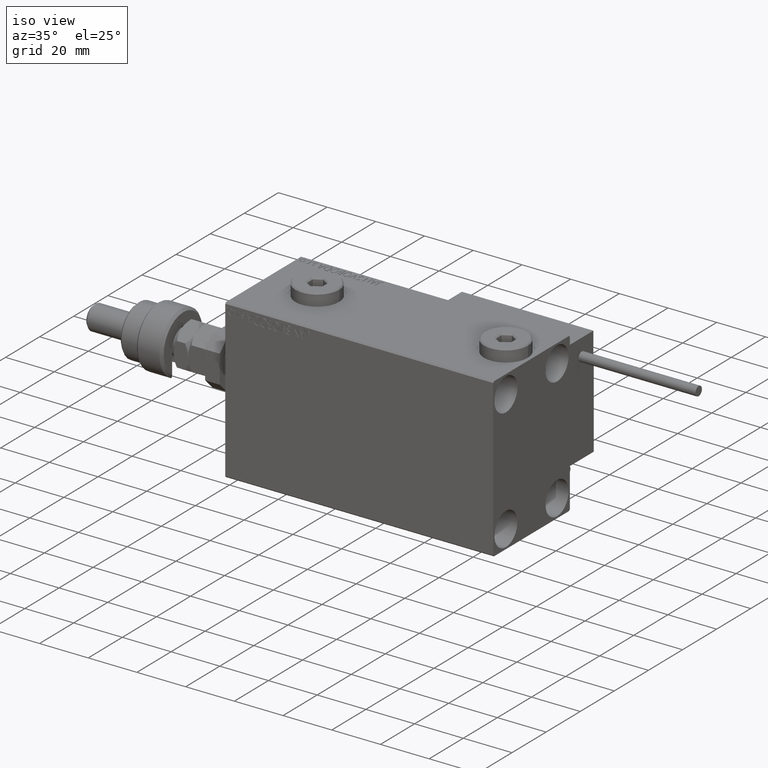
[diagram: clean part render]
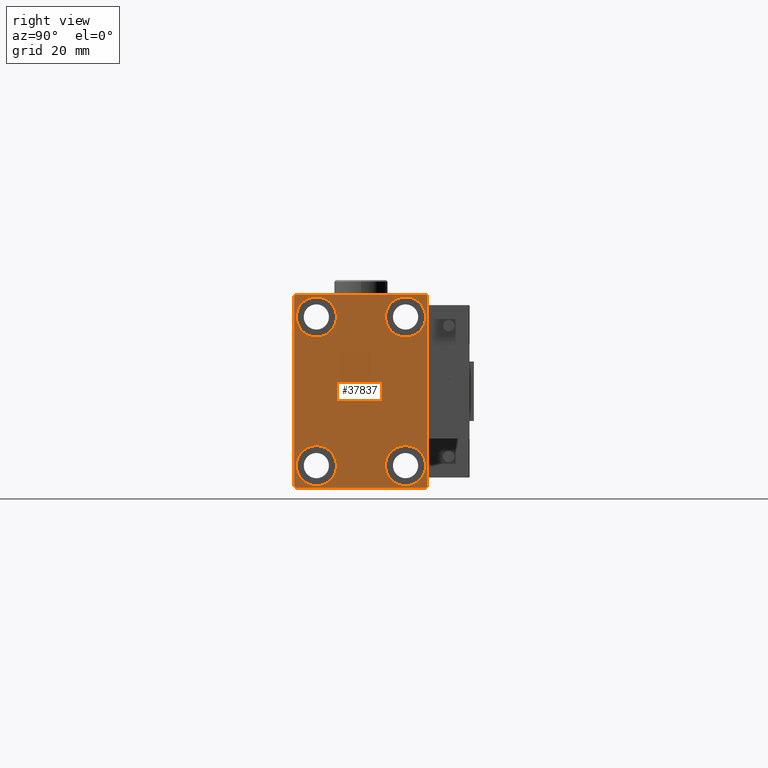
[diagram: tour spotlight — one face highlighted and labeled with its STEP entity id]
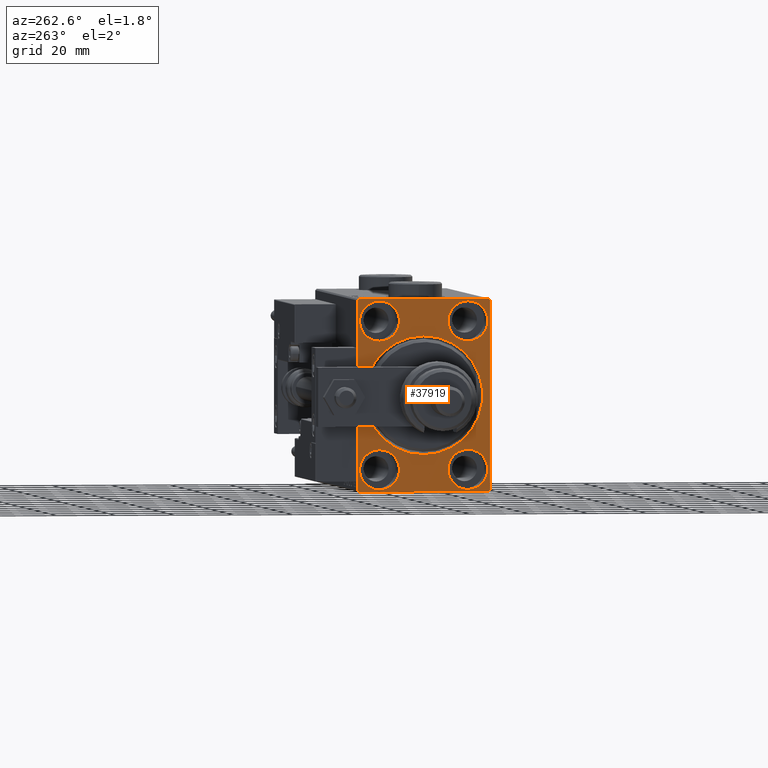
[diagram: tour spotlight — one face highlighted and labeled with its STEP entity id]
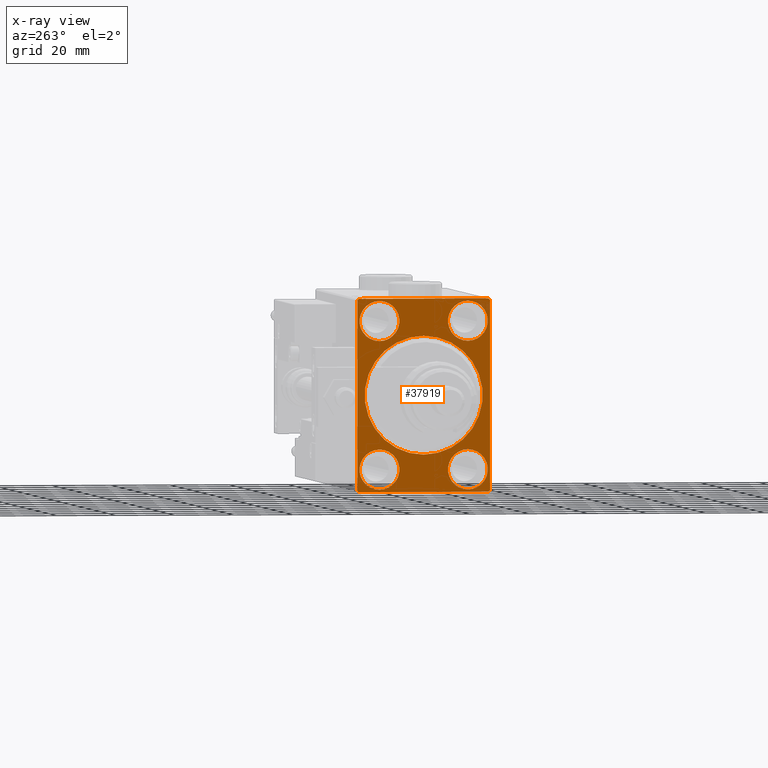
[diagram: x-ray of the same camera — body ghosted, this tour face saturated]
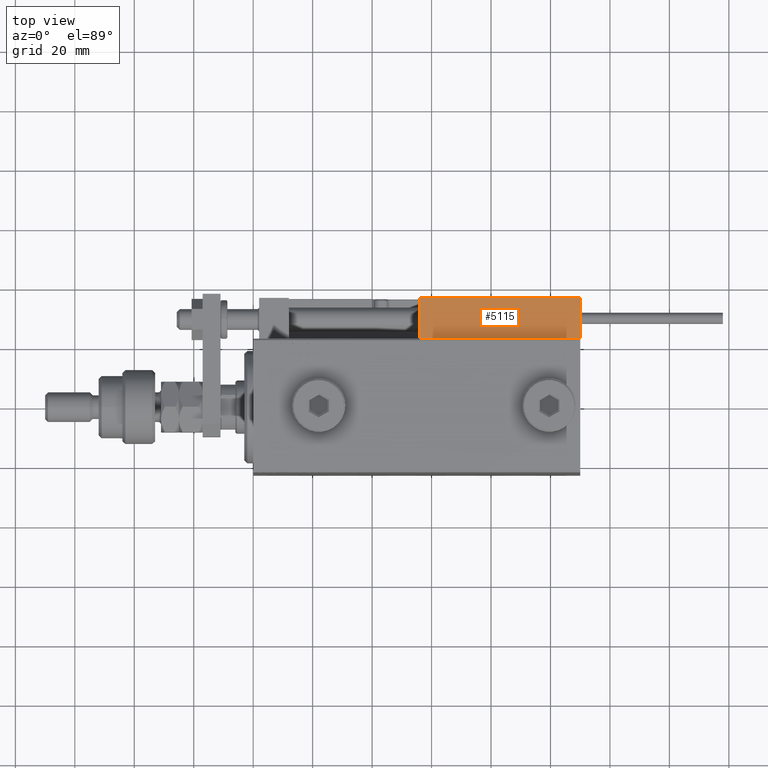
[diagram: tour spotlight — one face highlighted and labeled with its STEP entity id]
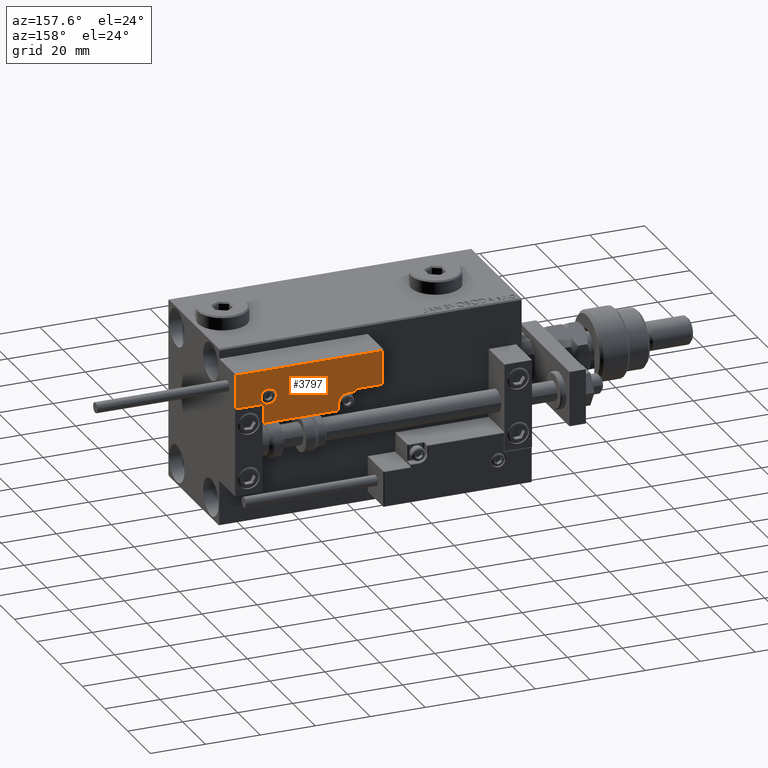
[diagram: tour spotlight — one face highlighted and labeled with its STEP entity id]
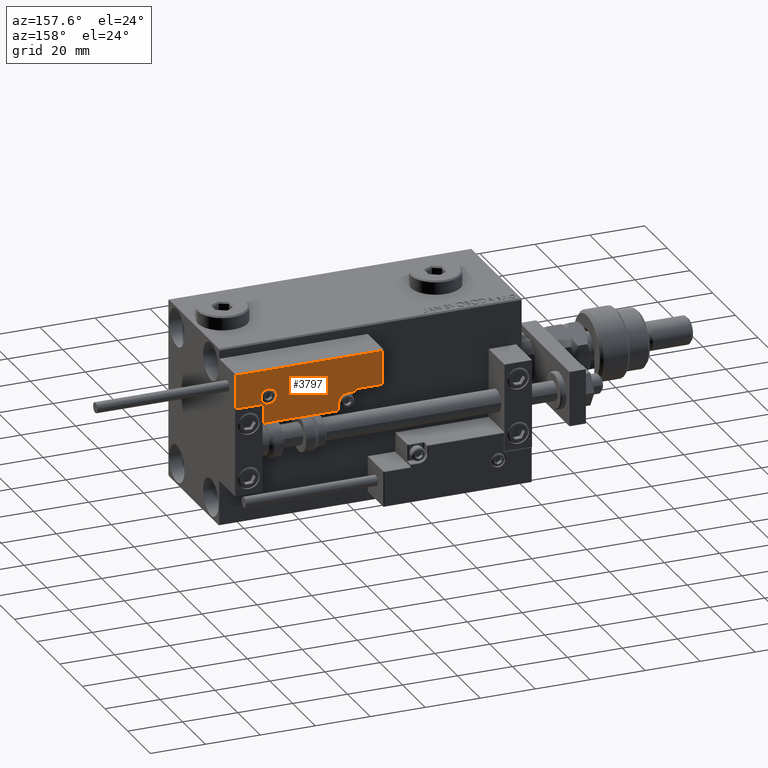
[diagram: tour spotlight — one face highlighted and labeled with its STEP entity id]
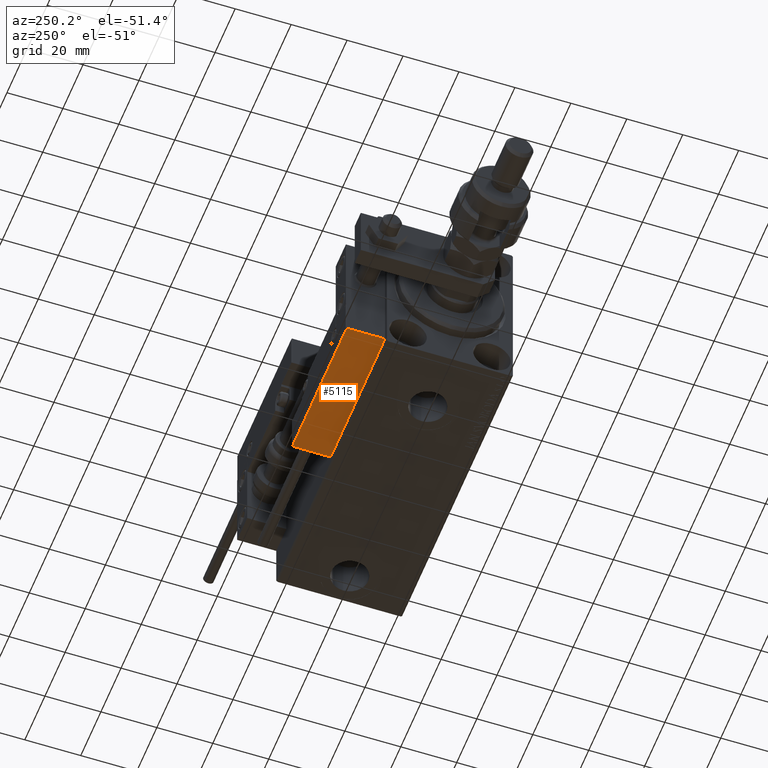
[diagram: tour spotlight — one face highlighted and labeled with its STEP entity id]
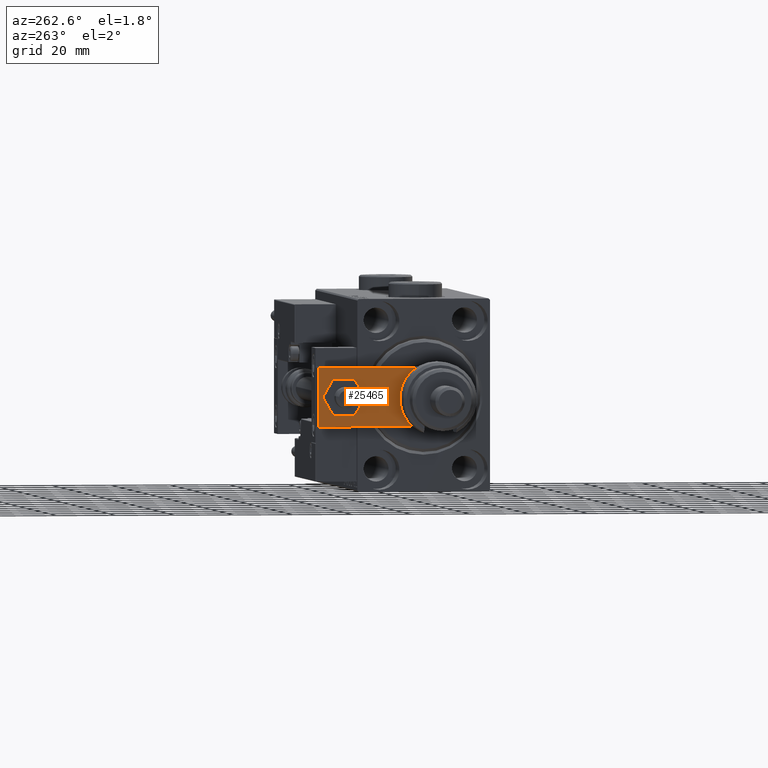
[diagram: tour spotlight — one face highlighted and labeled with its STEP entity id]
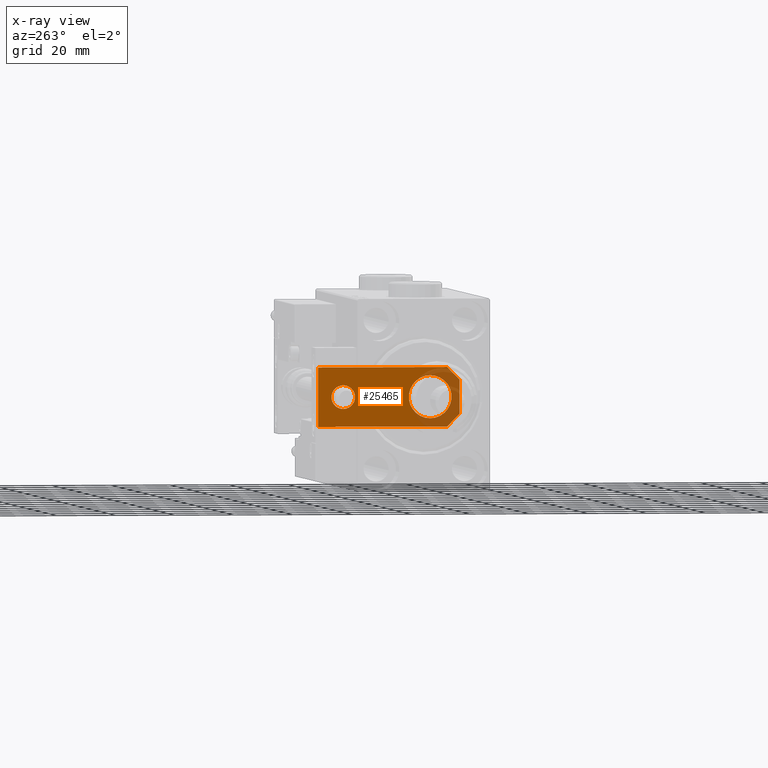
[diagram: x-ray of the same camera — body ghosted, this tour face saturated]
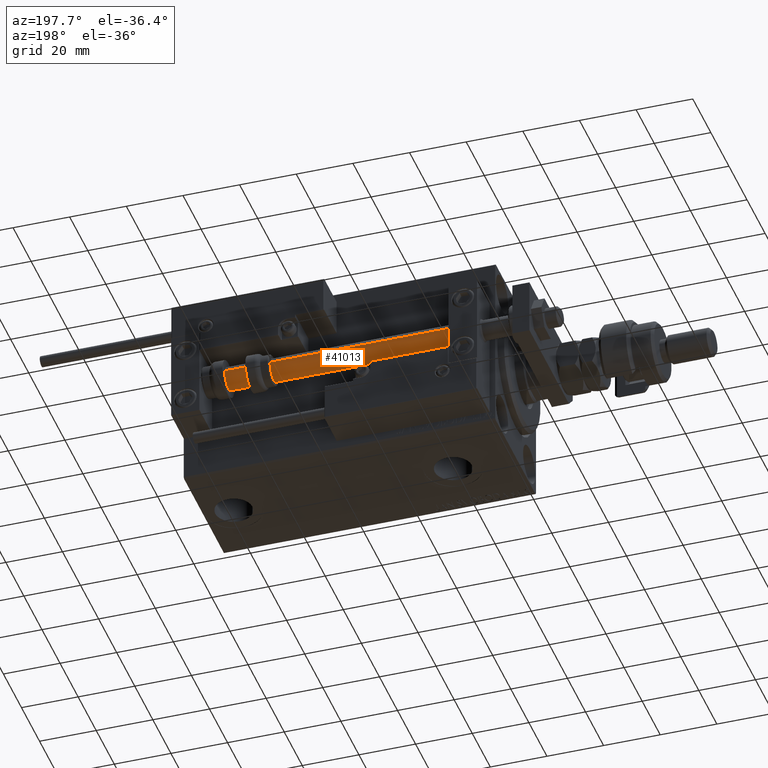
[diagram: tour spotlight — one face highlighted and labeled with its STEP entity id]
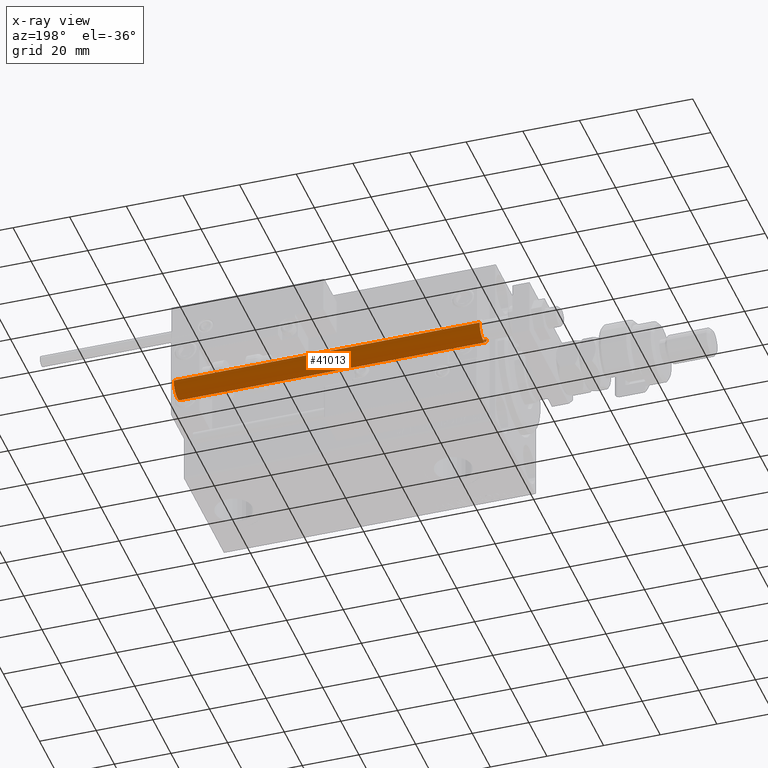
[diagram: x-ray of the same camera — body ghosted, this tour face saturated]
A machine part: a face-by-face anatomy tour. The part has 1421 B-rep faces; the first image is the clean iso view, then the 8 largest visible faces are spotlighted one at a time (largest first), each with its STEP entity span.

Face 1 — right view, entity #37837. In plain terms, the highlighted planar face has unit normal (1, 0, 0).
Definition (entity closure, byte-faithful):
#1 = DIRECTION ( 'NONE',  ( 0.000000000000000000, -0.7071067811865474617, -0.7071067811865474617 ) ) ;
#17 = DIRECTION ( 'NONE',  ( -1.000000000000000000, -0.000000000000000000, -0.000000000000000000 ) ) ;
#215 = VERTEX_POINT ( 'NONE', #43001 ) ;
#401 = EDGE_LOOP ( 'NONE', ( #36905, #37959 ) ) ;
#903 = DIRECTION ( 'NONE',  ( 0.000000000000000000, 0.000000000000000000, 1.000000000000000000 ) ) ;
#1648 = DIRECTION ( 'NONE',  ( 0.000000000000000000, 0.000000000000000000, 1.000000000000000000 ) ) ;
#1871 = EDGE_CURVE ( 'NONE', #3973, #24346, #15314, .T. ) ;
#2459 = CARTESIAN_POINT ( 'NONE',  ( 110.0000000000000000, -15.00000000000000355, -25.00000000000000000 ) ) ;
#2610 = DIRECTION ( 'NONE',  ( 1.000000000000000000, 0.000000000000000000, 0.000000000000000000 ) ) ;
#2623 = DIRECTION ( 'NONE',  ( -0.000000000000000000, 0.7071067811865474617, -0.7071067811865474617 ) ) ;
#2881 = FACE_BOUND ( 'NONE', #52665, .T. ) ;
#2962 = CARTESIAN_POINT ( 'NONE',  ( 110.0000000000000000, 22.00000000000000711, 32.50000000000000000 ) ) ;
#2974 = AXIS2_PLACEMENT_3D ( 'NONE', #16281, #3644, #24269 ) ;
#3233 = CARTESIAN_POINT ( 'NONE',  ( 110.0000000000000000, 27.24999999999985079, 27.25000000000023093 ) ) ;
#3401 = VECTOR ( 'NONE', #40046, 1000.000000000000000 ) ;
#3573 = ORIENTED_EDGE ( 'NONE', *, *, #40395, .T. ) ;
#3644 = DIRECTION ( 'NONE',  ( -1.000000000000000000, -0.000000000000000000, -0.000000000000000000 ) ) ;
#3861 = CARTESIAN_POINT ( 'NONE',  ( 110.0000000000000000, 21.99999999999998579, -32.50000000000000711 ) ) ;
#3947 = EDGE_CURVE ( 'NONE', #42554, #3973, #49766, .T. ) ;
#3973 = VERTEX_POINT ( 'NONE', #8795 ) ;
#4447 = VECTOR ( 'NONE', #24254, 1000.000000000000000 ) ;
#4501 = VERTEX_POINT ( 'NONE', #18798 ) ;
#4766 = CARTESIAN_POINT ( 'NONE',  ( 110.0000000000000000, -15.00000000000000355, -25.00000000000000000 ) ) ;
#5343 = LINE ( 'NONE', #34468, #7606 ) ;
#5369 = CARTESIAN_POINT ( 'NONE',  ( 110.0000000000000000, -15.00000000000000355, -18.25000000000000355 ) ) ;
#5421 = EDGE_CURVE ( 'NONE', #24346, #15129, #40821, .T. ) ;
#5616 = VERTEX_POINT ( 'NONE', #38050 ) ;
#5778 = DIRECTION ( 'NONE',  ( -1.000000000000000000, -0.000000000000000000, -0.000000000000000000 ) ) ;
#6087 = ORIENTED_EDGE ( 'NONE', *, *, #53549, .T. ) ;
#7534 = CIRCLE ( 'NONE', #48752, 6.749999999999999112 ) ;
#7606 = VECTOR ( 'NONE', #26493, 1000.000000000000000 ) ;
#8255 = AXIS2_PLACEMENT_3D ( 'NONE', #53261, #32370, #11482 ) ;
#8795 = CARTESIAN_POINT ( 'NONE',  ( 110.0000000000000000, -22.50000000000000711, 31.99999999999999289 ) ) ;
#9416 = ORIENTED_EDGE ( 'NONE', *, *, #5421, .T. ) ;
#9429 = DIRECTION ( 'NONE',  ( -1.000000000000000000, -0.000000000000000000, -0.000000000000000000 ) ) ;
#9618 = AXIS2_PLACEMENT_3D ( 'NONE', #53625, #17, #34087 ) ;
#10024 = CIRCLE ( 'NONE', #26715, 6.749999999999999112 ) ;
#10721 = ORIENTED_EDGE ( 'NONE', *, *, #35518, .T. ) ;
#11417 = VERTEX_POINT ( 'NONE', #33330 ) ;
#11482 = DIRECTION ( 'NONE',  ( 0.000000000000000000, 0.000000000000000000, 1.000000000000000000 ) ) ;
#12100 = CARTESIAN_POINT ( 'NONE',  ( 110.0000000000000000, -27.25000000000000000, 27.25000000000000000 ) ) ;
#13373 = EDGE_CURVE ( 'NONE', #45348, #51741, #14922, .T. ) ;
#13778 = CARTESIAN_POINT ( 'NONE',  ( 110.0000000000000000, 22.49999999999999289, 32.00000000000002132 ) ) ;
#14334 = ORIENTED_EDGE ( 'NONE', *, *, #34134, .T. ) ;
#14383 = AXIS2_PLACEMENT_3D ( 'NONE', #23509, #2610, #19371 ) ;
#14911 = EDGE_CURVE ( 'NONE', #215, #5616, #24680, .T. ) ;
#14922 = CIRCLE ( 'NONE', #46503, 6.749999999999999112 ) ;
#15129 = VERTEX_POINT ( 'NONE', #25246 ) ;
#15178 = AXIS2_PLACEMENT_3D ( 'NONE', #17998, #25996, #34235 ) ;
#15270 = CIRCLE ( 'NONE', #45132, 6.749999999999999112 ) ;
#15287 = LINE ( 'NONE', #44682, #53534 ) ;
#15314 = LINE ( 'NONE', #19154, #3401 ) ;
#15337 = DIRECTION ( 'NONE',  ( -0.000000000000000000, -0.7071067811865525687, 0.7071067811865425767 ) ) ;
#16105 = DIRECTION ( 'NONE',  ( 0.000000000000000000, 1.000000000000000000, 0.000000000000000000 ) ) ;
#16281 = CARTESIAN_POINT ( 'NONE',  ( 110.0000000000000000, -14.99999999999999645, 25.00000000000000000 ) ) ;
#17402 = CARTESIAN_POINT ( 'NONE',  ( 110.0000000000000000, 15.00000000000000355, 25.00000000000000000 ) ) ;
#17939 = DIRECTION ( 'NONE',  ( 0.000000000000000000, 0.000000000000000000, 1.000000000000000000 ) ) ;
#17995 = EDGE_CURVE ( 'NONE', #27007, #42554, #20398, .T. ) ;
#17998 = CARTESIAN_POINT ( 'NONE',  ( 110.0000000000000000, 14.99999999999999645, -25.00000000000000000 ) ) ;
#18798 = CARTESIAN_POINT ( 'NONE',  ( 110.0000000000000000, 15.00000000000000355, 18.25000000000000355 ) ) ;
#19154 = CARTESIAN_POINT ( 'NONE',  ( 110.0000000000000000, -22.50000000000000711, 32.49999999999999289 ) ) ;
#19371 = DIRECTION ( 'NONE',  ( 0.000000000000000000, 0.000000000000000000, -1.000000000000000000 ) ) ;
#20217 = CARTESIAN_POINT ( 'NONE',  ( 110.0000000000000000, -27.25000000000000711, -27.25000000000000711 ) ) ;
#20398 = LINE ( 'NONE', #40448, #4447 ) ;
#21275 = VERTEX_POINT ( 'NONE', #23486 ) ;
#23486 = CARTESIAN_POINT ( 'NONE',  ( 110.0000000000000000, 15.00000000000000355, 31.75000000000000000 ) ) ;
#23509 = CARTESIAN_POINT ( 'NONE',  ( 110.0000000000000000, 0.000000000000000000, 0.000000000000000000 ) ) ;
#23784 = FACE_BOUND ( 'NONE', #27578, .T. ) ;
#24254 = DIRECTION ( 'NONE',  ( 0.000000000000000000, -1.000000000000000000, -1.541976423090495387E-16 ) ) ;
#24269 = DIRECTION ( 'NONE',  ( 0.000000000000000000, 0.000000000000000000, 1.000000000000000000 ) ) ;
#24346 = VERTEX_POINT ( 'NONE', #42057 ) ;
#24680 = CIRCLE ( 'NONE', #9618, 6.749999999999999112 ) ;
#25185 = EDGE_CURVE ( 'NONE', #51741, #45348, #15270, .T. ) ;
#25246 = CARTESIAN_POINT ( 'NONE',  ( 110.0000000000000000, -22.00000000000000711, -32.50000000000000711 ) ) ;
#25564 = VECTOR ( 'NONE', #1, 1000.000000000000114 ) ;
#25954 = CARTESIAN_POINT ( 'NONE',  ( 110.0000000000000000, 27.25000000000000355, -27.25000000000000355 ) ) ;
#25996 = DIRECTION ( 'NONE',  ( -1.000000000000000000, -0.000000000000000000, -0.000000000000000000 ) ) ;
#26133 = ORIENTED_EDGE ( 'NONE', *, *, #42169, .T. ) ;
#26493 = DIRECTION ( 'NONE',  ( 0.000000000000000000, -1.067522139062650425E-16, 1.000000000000000000 ) ) ;
#26715 = AXIS2_PLACEMENT_3D ( 'NONE', #17402, #9429, #17939 ) ;
#27007 = VERTEX_POINT ( 'NONE', #2962 ) ;
#27578 = EDGE_LOOP ( 'NONE', ( #41690, #34027 ) ) ;
#27729 = CARTESIAN_POINT ( 'NONE',  ( 110.0000000000000000, -14.99999999999999645, 31.75000000000000000 ) ) ;
#27970 = VERTEX_POINT ( 'NONE', #3861 ) ;
#28121 = EDGE_CURVE ( 'NONE', #29144, #35030, #28410, .T. ) ;
#28410 = CIRCLE ( 'NONE', #8255, 6.749999999999999112 ) ;
#29144 = VERTEX_POINT ( 'NONE', #27729 ) ;
#29515 = VECTOR ( 'NONE', #2623, 1000.000000000000114 ) ;
#31133 = VECTOR ( 'NONE', #39109, 1000.000000000000114 ) ;
#31196 = FACE_BOUND ( 'NONE', #36740, .T. ) ;
#31744 = EDGE_CURVE ( 'NONE', #5616, #215, #53793, .T. ) ;
#32370 = DIRECTION ( 'NONE',  ( -1.000000000000000000, -0.000000000000000000, -0.000000000000000000 ) ) ;
#33330 = CARTESIAN_POINT ( 'NONE',  ( 110.0000000000000000, 22.50000000000000000, -32.00000000000000711 ) ) ;
#33531 = CARTESIAN_POINT ( 'NONE',  ( 110.0000000000000000, 15.00000000000000355, 25.00000000000000000 ) ) ;
#33988 = ORIENTED_EDGE ( 'NONE', *, *, #28121, .T. ) ;
#34027 = ORIENTED_EDGE ( 'NONE', *, *, #14911, .T. ) ;
#34087 = DIRECTION ( 'NONE',  ( 0.000000000000000000, 0.000000000000000000, 1.000000000000000000 ) ) ;
#34134 = EDGE_CURVE ( 'NONE', #35030, #29144, #36317, .T. ) ;
#34235 = DIRECTION ( 'NONE',  ( 0.000000000000000000, 0.000000000000000000, 1.000000000000000000 ) ) ;
#34427 = DIRECTION ( 'NONE',  ( -1.000000000000000000, -0.000000000000000000, -0.000000000000000000 ) ) ;
#34468 = CARTESIAN_POINT ( 'NONE',  ( 110.0000000000000000, 22.50000000000000000, -32.50000000000000711 ) ) ;
#34729 = EDGE_CURVE ( 'NONE', #21275, #4501, #10024, .T. ) ;
#34981 = LINE ( 'NONE', #25954, #31133 ) ;
#35030 = VERTEX_POINT ( 'NONE', #47762 ) ;
#35518 = EDGE_CURVE ( 'NONE', #27970, #11417, #34981, .T. ) ;
#36211 = LINE ( 'NONE', #3233, #44426 ) ;
#36317 = CIRCLE ( 'NONE', #2974, 6.749999999999999112 ) ;
#36740 = EDGE_LOOP ( 'NONE', ( #14334, #33988 ) ) ;
#36905 = ORIENTED_EDGE ( 'NONE', *, *, #13373, .T. ) ;
#37837 = ADVANCED_FACE ( 'NONE', ( #23784, #31196, #2881, #52621, #52089 ), #39721, .T. ) ;
#37959 = ORIENTED_EDGE ( 'NONE', *, *, #25185, .T. ) ;
#38050 = CARTESIAN_POINT ( 'NONE',  ( 110.0000000000000000, 14.99999999999999645, -31.75000000000000000 ) ) ;
#39109 = DIRECTION ( 'NONE',  ( -0.000000000000000000, 0.7071067811865474617, 0.7071067811865474617 ) ) ;
#39721 = PLANE ( 'NONE',  #14383 ) ;
#40046 = DIRECTION ( 'NONE',  ( 0.000000000000000000, 0.000000000000000000, -1.000000000000000000 ) ) ;
#40395 = EDGE_CURVE ( 'NONE', #4501, #21275, #7534, .T. ) ;
#40448 = CARTESIAN_POINT ( 'NONE',  ( 110.0000000000000000, 22.49999999999999289, 32.50000000000000000 ) ) ;
#40821 = LINE ( 'NONE', #20217, #29515 ) ;
#40822 = CARTESIAN_POINT ( 'NONE',  ( 110.0000000000000000, -21.99999999999999289, 32.49999999999999289 ) ) ;
#40936 = ORIENTED_EDGE ( 'NONE', *, *, #1871, .T. ) ;
#41690 = ORIENTED_EDGE ( 'NONE', *, *, #31744, .T. ) ;
#42057 = CARTESIAN_POINT ( 'NONE',  ( 110.0000000000000000, -22.50000000000000711, -32.00000000000000711 ) ) ;
#42169 = EDGE_CURVE ( 'NONE', #52098, #27007, #36211, .T. ) ;
#42554 = VERTEX_POINT ( 'NONE', #40822 ) ;
#42848 = EDGE_CURVE ( 'NONE', #11417, #52098, #5343, .T. ) ;
#43001 = CARTESIAN_POINT ( 'NONE',  ( 110.0000000000000000, 14.99999999999999645, -18.25000000000000355 ) ) ;
#44426 = VECTOR ( 'NONE', #15337, 999.9999999999998863 ) ;
#44638 = CARTESIAN_POINT ( 'NONE',  ( 110.0000000000000000, -15.00000000000000355, -31.75000000000000000 ) ) ;
#44682 = CARTESIAN_POINT ( 'NONE',  ( 110.0000000000000000, -22.50000000000000711, -32.50000000000000711 ) ) ;
#45132 = AXIS2_PLACEMENT_3D ( 'NONE', #2459, #5778, #1648 ) ;
#45348 = VERTEX_POINT ( 'NONE', #44638 ) ;
#45360 = EDGE_LOOP ( 'NONE', ( #52639, #46844, #40936, #9416, #6087, #10721, #51146, #26133 ) ) ;
#46503 = AXIS2_PLACEMENT_3D ( 'NONE', #4766, #34427, #903 ) ;
#46844 = ORIENTED_EDGE ( 'NONE', *, *, #3947, .T. ) ;
#47762 = CARTESIAN_POINT ( 'NONE',  ( 110.0000000000000000, -14.99999999999999645, 18.25000000000000355 ) ) ;
#48023 = ORIENTED_EDGE ( 'NONE', *, *, #34729, .T. ) ;
#48752 = AXIS2_PLACEMENT_3D ( 'NONE', #33531, #50571, #50303 ) ;
#49766 = LINE ( 'NONE', #12100, #25564 ) ;
#50303 = DIRECTION ( 'NONE',  ( 0.000000000000000000, 0.000000000000000000, 1.000000000000000000 ) ) ;
#50571 = DIRECTION ( 'NONE',  ( -1.000000000000000000, -0.000000000000000000, -0.000000000000000000 ) ) ;
#51146 = ORIENTED_EDGE ( 'NONE', *, *, #42848, .T. ) ;
#51741 = VERTEX_POINT ( 'NONE', #5369 ) ;
#52089 = FACE_OUTER_BOUND ( 'NONE', #45360, .T. ) ;
#52098 = VERTEX_POINT ( 'NONE', #13778 ) ;
#52621 = FACE_BOUND ( 'NONE', #401, .T. ) ;
#52639 = ORIENTED_EDGE ( 'NONE', *, *, #17995, .T. ) ;
#52665 = EDGE_LOOP ( 'NONE', ( #3573, #48023 ) ) ;
#53261 = CARTESIAN_POINT ( 'NONE',  ( 110.0000000000000000, -14.99999999999999645, 25.00000000000000000 ) ) ;
#53534 = VECTOR ( 'NONE', #16105, 1000.000000000000000 ) ;
#53549 = EDGE_CURVE ( 'NONE', #15129, #27970, #15287, .T. ) ;
#53625 = CARTESIAN_POINT ( 'NONE',  ( 110.0000000000000000, 14.99999999999999645, -25.00000000000000000 ) ) ;
#53793 = CIRCLE ( 'NONE', #15178, 6.749999999999999112 ) ;

Face 2 — auxiliary view, entity #37919. An x-ray twin of the same camera follows (body ghosted, this face saturated) — the face is partly hidden behind the body. In plain terms, the highlighted planar face has unit normal (1, 0, 0).
Definition (entity closure, byte-faithful):
#82 = EDGE_CURVE ( 'NONE', #35730, #16738, #6854, .T. ) ;
#1052 = EDGE_CURVE ( 'NONE', #19771, #23118, #13942, .T. ) ;
#1259 = EDGE_CURVE ( 'NONE', #50367, #31794, #4304, .T. ) ;
#1592 = CARTESIAN_POINT ( 'NONE',  ( 0.000000000000000000, -22.50000000000000711, 31.99999999999999289 ) ) ;
#1809 = CARTESIAN_POINT ( 'NONE',  ( 0.000000000000000000, 15.00000000000000355, 25.00000000000000000 ) ) ;
#1930 = VECTOR ( 'NONE', #49378, 1000.000000000000000 ) ;
#2802 = DIRECTION ( 'NONE',  ( -1.000000000000000000, 0.000000000000000000, 0.000000000000000000 ) ) ;
#3046 = DIRECTION ( 'NONE',  ( 0.000000000000000000, -1.000000000000000000, -1.541976423090495387E-16 ) ) ;
#3300 = EDGE_CURVE ( 'NONE', #18719, #11698, #31282, .T. ) ;
#3393 = AXIS2_PLACEMENT_3D ( 'NONE', #7178, #40428, #6357 ) ;
#4144 = CIRCLE ( 'NONE', #41016, 6.749999999999999112 ) ;
#4304 = CIRCLE ( 'NONE', #25349, 6.749999999999999112 ) ;
#4450 = ORIENTED_EDGE ( 'NONE', *, *, #50727, .F. ) ;
#4575 = EDGE_LOOP ( 'NONE', ( #4450, #40921 ) ) ;
#4716 = VERTEX_POINT ( 'NONE', #5289 ) ;
#4977 = VERTEX_POINT ( 'NONE', #32843 ) ;
#5108 = EDGE_CURVE ( 'NONE', #16738, #35730, #19871, .T. ) ;
#5289 = CARTESIAN_POINT ( 'NONE',  ( 0.000000000000000000, 15.00000000000000355, 31.75000000000000000 ) ) ;
#5908 = CARTESIAN_POINT ( 'NONE',  ( 0.000000000000000000, -22.00000000000000711, -32.50000000000000711 ) ) ;
#6060 = VECTOR ( 'NONE', #43649, 999.9999999999998863 ) ;
#6357 = DIRECTION ( 'NONE',  ( 0.000000000000000000, 0.000000000000000000, 1.000000000000000000 ) ) ;
#6461 = DIRECTION ( 'NONE',  ( 1.000000000000000000, 0.000000000000000000, 0.000000000000000000 ) ) ;
#6475 = VECTOR ( 'NONE', #3046, 1000.000000000000000 ) ;
#6854 = CIRCLE ( 'NONE', #29639, 20.00000000000000355 ) ;
#7147 = ORIENTED_EDGE ( 'NONE', *, *, #5108, .T. ) ;
#7178 = CARTESIAN_POINT ( 'NONE',  ( 0.000000000000000000, 14.99999999999999645, -25.00000000000000000 ) ) ;
#7337 = EDGE_CURVE ( 'NONE', #31794, #50367, #47170, .T. ) ;
#7488 = EDGE_CURVE ( 'NONE', #42361, #32674, #4144, .T. ) ;
#8235 = ORIENTED_EDGE ( 'NONE', *, *, #36305, .F. ) ;
#8574 = LINE ( 'NONE', #25351, #35495 ) ;
#9003 = EDGE_CURVE ( 'NONE', #4716, #4977, #48104, .T. ) ;
#9008 = CARTESIAN_POINT ( 'NONE',  ( 0.000000000000000000, -22.50000000000000711, 32.49999999999999289 ) ) ;
#9180 = EDGE_LOOP ( 'NONE', ( #7147, #42017 ) ) ;
#9474 = EDGE_CURVE ( 'NONE', #13496, #15734, #20027, .T. ) ;
#9755 = CARTESIAN_POINT ( 'NONE',  ( 0.000000000000000000, 22.50000000000000000, -32.00000000000000711 ) ) ;
#9906 = EDGE_LOOP ( 'NONE', ( #35123, #39573 ) ) ;
#10030 = CARTESIAN_POINT ( 'NONE',  ( 0.000000000000000000, -15.00000000000000355, -31.75000000000000000 ) ) ;
#10047 = VERTEX_POINT ( 'NONE', #34841 ) ;
#10110 = CIRCLE ( 'NONE', #25945, 6.749999999999999112 ) ;
#10483 = CARTESIAN_POINT ( 'NONE',  ( 0.000000000000000000, -15.00000000000000355, -25.00000000000000000 ) ) ;
#11068 = AXIS2_PLACEMENT_3D ( 'NONE', #36009, #20071, #15127 ) ;
#11119 = PLANE ( 'NONE',  #21445 ) ;
#11698 = VERTEX_POINT ( 'NONE', #22473 ) ;
#13048 = AXIS2_PLACEMENT_3D ( 'NONE', #10483, #27266, #43482 ) ;
#13064 = CARTESIAN_POINT ( 'NONE',  ( 0.000000000000000000, 0.000000000000000000, 0.000000000000000000 ) ) ;
#13496 = VERTEX_POINT ( 'NONE', #16258 ) ;
#13942 = LINE ( 'NONE', #9008, #15639 ) ;
#14802 = CARTESIAN_POINT ( 'NONE',  ( 0.000000000000000000, -14.99999999999999645, 25.00000000000000000 ) ) ;
#15127 = DIRECTION ( 'NONE',  ( 0.000000000000000000, 0.000000000000000000, -1.000000000000000000 ) ) ;
#15177 = CARTESIAN_POINT ( 'NONE',  ( 0.000000000000000000, 0.000000000000000000, 20.00000000000000355 ) ) ;
#15357 = DIRECTION ( 'NONE',  ( 0.000000000000000000, 0.000000000000000000, 1.000000000000000000 ) ) ;
#15639 = VECTOR ( 'NONE', #42259, 1000.000000000000000 ) ;
#15734 = VERTEX_POINT ( 'NONE', #49790 ) ;
#16102 = VECTOR ( 'NONE', #49018, 1000.000000000000114 ) ;
#16258 = CARTESIAN_POINT ( 'NONE',  ( 0.000000000000000000, 14.99999999999999645, -31.75000000000000000 ) ) ;
#16738 = VERTEX_POINT ( 'NONE', #15177 ) ;
#17810 = ORIENTED_EDGE ( 'NONE', *, *, #27828, .F. ) ;
#18004 = EDGE_LOOP ( 'NONE', ( #35192, #46747 ) ) ;
#18462 = CARTESIAN_POINT ( 'NONE',  ( 0.000000000000000000, -22.50000000000000711, -32.00000000000000711 ) ) ;
#18719 = VERTEX_POINT ( 'NONE', #43085 ) ;
#18836 = FACE_BOUND ( 'NONE', #9906, .T. ) ;
#19192 = DIRECTION ( 'NONE',  ( -1.000000000000000000, 0.000000000000000000, 0.000000000000000000 ) ) ;
#19771 = VERTEX_POINT ( 'NONE', #1592 ) ;
#19871 = CIRCLE ( 'NONE', #11068, 20.00000000000000355 ) ;
#20027 = CIRCLE ( 'NONE', #40220, 6.749999999999999112 ) ;
#20071 = DIRECTION ( 'NONE',  ( 1.000000000000000000, 0.000000000000000000, 0.000000000000000000 ) ) ;
#20833 = AXIS2_PLACEMENT_3D ( 'NONE', #14802, #19192, #15357 ) ;
#21123 = EDGE_CURVE ( 'NONE', #22393, #11698, #37536, .T. ) ;
#21445 = AXIS2_PLACEMENT_3D ( 'NONE', #44649, #6461, #27896 ) ;
#21677 = ORIENTED_EDGE ( 'NONE', *, *, #34261, .F. ) ;
#22393 = VERTEX_POINT ( 'NONE', #9755 ) ;
#22473 = CARTESIAN_POINT ( 'NONE',  ( 0.000000000000000000, 22.49999999999999289, 32.00000000000002132 ) ) ;
#22705 = FACE_BOUND ( 'NONE', #9180, .T. ) ;
#22845 = CARTESIAN_POINT ( 'NONE',  ( 0.000000000000000000, -22.00000000000000711, -32.50000000000000711 ) ) ;
#22936 = CARTESIAN_POINT ( 'NONE',  ( 0.000000000000000000, -14.99999999999999645, 31.75000000000000000 ) ) ;
#23118 = VERTEX_POINT ( 'NONE', #18462 ) ;
#23668 = CARTESIAN_POINT ( 'NONE',  ( 0.000000000000000000, 22.49999999999999289, 32.50000000000000000 ) ) ;
#23955 = EDGE_CURVE ( 'NONE', #22393, #27038, #40495, .T. ) ;
#24116 = DIRECTION ( 'NONE',  ( -1.000000000000000000, 0.000000000000000000, 0.000000000000000000 ) ) ;
#24922 = DIRECTION ( 'NONE',  ( 1.000000000000000000, 0.000000000000000000, 0.000000000000000000 ) ) ;
#24981 = DIRECTION ( 'NONE',  ( -0.000000000000000000, 0.7071067811865474617, 0.7071067811865474617 ) ) ;
#25349 = AXIS2_PLACEMENT_3D ( 'NONE', #41858, #50931, #37746 ) ;
#25351 = CARTESIAN_POINT ( 'NONE',  ( 0.000000000000000000, -22.50000000000000711, -32.50000000000000711 ) ) ;
#25898 = VERTEX_POINT ( 'NONE', #5908 ) ;
#25945 = AXIS2_PLACEMENT_3D ( 'NONE', #1809, #33792, #43839 ) ;
#26263 = EDGE_LOOP ( 'NONE', ( #29126, #44660, #17810, #28843, #38974, #28027, #21677, #33004 ) ) ;
#26680 = LINE ( 'NONE', #22845, #32077 ) ;
#26849 = DIRECTION ( 'NONE',  ( 0.000000000000000000, 0.000000000000000000, 1.000000000000000000 ) ) ;
#27011 = CARTESIAN_POINT ( 'NONE',  ( 0.000000000000000000, 2.449293598294706907E-15, -20.00000000000000355 ) ) ;
#27038 = VERTEX_POINT ( 'NONE', #52977 ) ;
#27266 = DIRECTION ( 'NONE',  ( -1.000000000000000000, 0.000000000000000000, 0.000000000000000000 ) ) ;
#27828 = EDGE_CURVE ( 'NONE', #18719, #10047, #53605, .T. ) ;
#27896 = DIRECTION ( 'NONE',  ( 0.000000000000000000, 0.000000000000000000, -1.000000000000000000 ) ) ;
#28027 = ORIENTED_EDGE ( 'NONE', *, *, #23955, .T. ) ;
#28090 = CARTESIAN_POINT ( 'NONE',  ( 0.000000000000000000, 14.99999999999999645, -25.00000000000000000 ) ) ;
#28746 = DIRECTION ( 'NONE',  ( 0.000000000000000000, 0.000000000000000000, -1.000000000000000000 ) ) ;
#28843 = ORIENTED_EDGE ( 'NONE', *, *, #3300, .T. ) ;
#29126 = ORIENTED_EDGE ( 'NONE', *, *, #1052, .F. ) ;
#29291 = CARTESIAN_POINT ( 'NONE',  ( 0.000000000000000000, -14.99999999999999645, 18.25000000000000355 ) ) ;
#29323 = CARTESIAN_POINT ( 'NONE',  ( 0.000000000000000000, -15.00000000000000355, -18.25000000000000355 ) ) ;
#29639 = AXIS2_PLACEMENT_3D ( 'NONE', #13064, #24922, #28746 ) ;
#31282 = LINE ( 'NONE', #35136, #6060 ) ;
#31794 = VERTEX_POINT ( 'NONE', #29291 ) ;
#32013 = FACE_BOUND ( 'NONE', #4575, .T. ) ;
#32077 = VECTOR ( 'NONE', #39581, 1000.000000000000114 ) ;
#32347 = CIRCLE ( 'NONE', #13048, 6.749999999999999112 ) ;
#32674 = VERTEX_POINT ( 'NONE', #10030 ) ;
#32843 = CARTESIAN_POINT ( 'NONE',  ( 0.000000000000000000, 15.00000000000000355, 18.25000000000000355 ) ) ;
#33004 = ORIENTED_EDGE ( 'NONE', *, *, #40997, .T. ) ;
#33792 = DIRECTION ( 'NONE',  ( -1.000000000000000000, 0.000000000000000000, 0.000000000000000000 ) ) ;
#34261 = EDGE_CURVE ( 'NONE', #25898, #27038, #8574, .T. ) ;
#34841 = CARTESIAN_POINT ( 'NONE',  ( 0.000000000000000000, -21.99999999999999289, 32.49999999999999289 ) ) ;
#35123 = ORIENTED_EDGE ( 'NONE', *, *, #1259, .F. ) ;
#35136 = CARTESIAN_POINT ( 'NONE',  ( 0.000000000000000000, 22.00000000000000711, 32.50000000000000000 ) ) ;
#35192 = ORIENTED_EDGE ( 'NONE', *, *, #7488, .F. ) ;
#35495 = VECTOR ( 'NONE', #42092, 1000.000000000000000 ) ;
#35596 = FACE_BOUND ( 'NONE', #54254, .T. ) ;
#35730 = VERTEX_POINT ( 'NONE', #27011 ) ;
#36009 = CARTESIAN_POINT ( 'NONE',  ( 0.000000000000000000, 0.000000000000000000, 0.000000000000000000 ) ) ;
#36305 = EDGE_CURVE ( 'NONE', #4977, #4716, #10110, .T. ) ;
#36736 = CIRCLE ( 'NONE', #3393, 6.749999999999999112 ) ;
#36770 = VECTOR ( 'NONE', #24981, 1000.000000000000114 ) ;
#37055 = LINE ( 'NONE', #49156, #36770 ) ;
#37536 = LINE ( 'NONE', #54302, #1930 ) ;
#37746 = DIRECTION ( 'NONE',  ( 0.000000000000000000, 0.000000000000000000, 1.000000000000000000 ) ) ;
#37919 = ADVANCED_FACE ( 'NONE', ( #22705, #32013, #18836, #35596, #48781, #44106 ), #11119, .F. ) ;
#38938 = CARTESIAN_POINT ( 'NONE',  ( 0.000000000000000000, -15.00000000000000355, -25.00000000000000000 ) ) ;
#38974 = ORIENTED_EDGE ( 'NONE', *, *, #21123, .F. ) ;
#39573 = ORIENTED_EDGE ( 'NONE', *, *, #7337, .F. ) ;
#39581 = DIRECTION ( 'NONE',  ( -0.000000000000000000, -0.7071067811865474617, 0.7071067811865474617 ) ) ;
#40220 = AXIS2_PLACEMENT_3D ( 'NONE', #28090, #2802, #53643 ) ;
#40428 = DIRECTION ( 'NONE',  ( -1.000000000000000000, 0.000000000000000000, 0.000000000000000000 ) ) ;
#40495 = LINE ( 'NONE', #49579, #16102 ) ;
#40921 = ORIENTED_EDGE ( 'NONE', *, *, #9474, .F. ) ;
#40997 = EDGE_CURVE ( 'NONE', #25898, #23118, #26680, .T. ) ;
#41016 = AXIS2_PLACEMENT_3D ( 'NONE', #38938, #46918, #26849 ) ;
#41858 = CARTESIAN_POINT ( 'NONE',  ( 0.000000000000000000, -14.99999999999999645, 25.00000000000000000 ) ) ;
#42017 = ORIENTED_EDGE ( 'NONE', *, *, #82, .T. ) ;
#42092 = DIRECTION ( 'NONE',  ( 0.000000000000000000, 1.000000000000000000, 0.000000000000000000 ) ) ;
#42259 = DIRECTION ( 'NONE',  ( 0.000000000000000000, 0.000000000000000000, -1.000000000000000000 ) ) ;
#42361 = VERTEX_POINT ( 'NONE', #29323 ) ;
#43085 = CARTESIAN_POINT ( 'NONE',  ( 0.000000000000000000, 22.00000000000000711, 32.50000000000000000 ) ) ;
#43482 = DIRECTION ( 'NONE',  ( 0.000000000000000000, 0.000000000000000000, 1.000000000000000000 ) ) ;
#43649 = DIRECTION ( 'NONE',  ( -0.000000000000000000, 0.7071067811865525687, -0.7071067811865425767 ) ) ;
#43839 = DIRECTION ( 'NONE',  ( 0.000000000000000000, 0.000000000000000000, 1.000000000000000000 ) ) ;
#44106 = FACE_OUTER_BOUND ( 'NONE', #26263, .T. ) ;
#44649 = CARTESIAN_POINT ( 'NONE',  ( 0.000000000000000000, 0.000000000000000000, 0.000000000000000000 ) ) ;
#44660 = ORIENTED_EDGE ( 'NONE', *, *, #51199, .T. ) ;
#46747 = ORIENTED_EDGE ( 'NONE', *, *, #48092, .F. ) ;
#46918 = DIRECTION ( 'NONE',  ( -1.000000000000000000, 0.000000000000000000, 0.000000000000000000 ) ) ;
#47170 = CIRCLE ( 'NONE', #20833, 6.749999999999999112 ) ;
#48092 = EDGE_CURVE ( 'NONE', #32674, #42361, #32347, .T. ) ;
#48104 = CIRCLE ( 'NONE', #51638, 6.749999999999999112 ) ;
#48556 = DIRECTION ( 'NONE',  ( 0.000000000000000000, 0.000000000000000000, 1.000000000000000000 ) ) ;
#48781 = FACE_BOUND ( 'NONE', #18004, .T. ) ;
#49018 = DIRECTION ( 'NONE',  ( 0.000000000000000000, -0.7071067811865474617, -0.7071067811865474617 ) ) ;
#49156 = CARTESIAN_POINT ( 'NONE',  ( 0.000000000000000000, -22.50000000000000711, 31.99999999999999289 ) ) ;
#49378 = DIRECTION ( 'NONE',  ( 0.000000000000000000, -1.067522139062650425E-16, 1.000000000000000000 ) ) ;
#49579 = CARTESIAN_POINT ( 'NONE',  ( 0.000000000000000000, 22.50000000000000000, -32.00000000000000711 ) ) ;
#49790 = CARTESIAN_POINT ( 'NONE',  ( 0.000000000000000000, 14.99999999999999645, -18.25000000000000355 ) ) ;
#50367 = VERTEX_POINT ( 'NONE', #22936 ) ;
#50727 = EDGE_CURVE ( 'NONE', #15734, #13496, #36736, .T. ) ;
#50931 = DIRECTION ( 'NONE',  ( -1.000000000000000000, 0.000000000000000000, 0.000000000000000000 ) ) ;
#51199 = EDGE_CURVE ( 'NONE', #19771, #10047, #37055, .T. ) ;
#51638 = AXIS2_PLACEMENT_3D ( 'NONE', #52403, #24116, #48556 ) ;
#52108 = ORIENTED_EDGE ( 'NONE', *, *, #9003, .F. ) ;
#52403 = CARTESIAN_POINT ( 'NONE',  ( 0.000000000000000000, 15.00000000000000355, 25.00000000000000000 ) ) ;
#52977 = CARTESIAN_POINT ( 'NONE',  ( 0.000000000000000000, 21.99999999999998579, -32.50000000000000711 ) ) ;
#53605 = LINE ( 'NONE', #23668, #6475 ) ;
#53643 = DIRECTION ( 'NONE',  ( 0.000000000000000000, 0.000000000000000000, 1.000000000000000000 ) ) ;
#54254 = EDGE_LOOP ( 'NONE', ( #52108, #8235 ) ) ;
#54302 = CARTESIAN_POINT ( 'NONE',  ( 0.000000000000000000, 22.50000000000000000, -32.50000000000000711 ) ) ;

Face 3 — top view, entity #5115. In plain terms, the highlighted planar face has unit normal (-0, -0, -1).
Definition (entity closure, byte-faithful):
#2624 = DIRECTION ( 'NONE',  ( -1.000000000000000000, 6.424901762877062263E-17, 0.000000000000000000 ) ) ;
#5115 = ADVANCED_FACE ( 'NONE', ( #52491 ), #7437, .F. ) ;
#7366 = CARTESIAN_POINT ( 'NONE',  ( 27.00000000000006395, 20.00000000000001776, 13.70000000000000107 ) ) ;
#7437 = PLANE ( 'NONE',  #40072 ) ;
#10027 = ORIENTED_EDGE ( 'NONE', *, *, #25319, .T. ) ;
#11061 = VERTEX_POINT ( 'NONE', #45764 ) ;
#11235 = CARTESIAN_POINT ( 'NONE',  ( 27.00000000000006395, 20.00000000000001776, 14.00000000000000000 ) ) ;
#15249 = DIRECTION ( 'NONE',  ( -0.000000000000000000, -0.000000000000000000, -1.000000000000000000 ) ) ;
#15352 = VECTOR ( 'NONE', #23052, 1000.000000000000000 ) ;
#15381 = DIRECTION ( 'NONE',  ( -0.000000000000000000, -0.000000000000000000, -1.000000000000000000 ) ) ;
#16642 = EDGE_LOOP ( 'NONE', ( #36627, #50089, #10027, #44916 ) ) ;
#19161 = EDGE_CURVE ( 'NONE', #35437, #43378, #49047, .T. ) ;
#19655 = LINE ( 'NONE', #44666, #28636 ) ;
#20045 = LINE ( 'NONE', #11235, #49534 ) ;
#23052 = DIRECTION ( 'NONE',  ( 1.000000000000000000, -6.424901762877063495E-17, -0.000000000000000000 ) ) ;
#24144 = LINE ( 'NONE', #7366, #15352 ) ;
#25319 = EDGE_CURVE ( 'NONE', #11061, #41755, #20045, .T. ) ;
#26971 = EDGE_CURVE ( 'NONE', #35437, #11061, #24144, .T. ) ;
#28636 = VECTOR ( 'NONE', #2624, 1000.000000000000000 ) ;
#32156 = DIRECTION ( 'NONE',  ( -6.424901762877063495E-17, -1.000000000000000000, 0.000000000000000000 ) ) ;
#33375 = CARTESIAN_POINT ( 'NONE',  ( -26.99999999999993605, 20.00000000000002132, 13.70000000000000107 ) ) ;
#35437 = VERTEX_POINT ( 'NONE', #33375 ) ;
#36627 = ORIENTED_EDGE ( 'NONE', *, *, #19161, .F. ) ;
#40072 = AXIS2_PLACEMENT_3D ( 'NONE', #52232, #32156, #40679 ) ;
#40679 = DIRECTION ( 'NONE',  ( 1.000000000000000000, -6.424901762877063495E-17, 0.000000000000000000 ) ) ;
#41176 = CARTESIAN_POINT ( 'NONE',  ( -26.99999999999993605, 20.00000000000002132, 0.000000000000000000 ) ) ;
#41755 = VERTEX_POINT ( 'NONE', #48785 ) ;
#42215 = VECTOR ( 'NONE', #15249, 1000.000000000000000 ) ;
#42553 = EDGE_CURVE ( 'NONE', #41755, #43378, #19655, .T. ) ;
#43378 = VERTEX_POINT ( 'NONE', #41176 ) ;
#44666 = CARTESIAN_POINT ( 'NONE',  ( 27.00000000000006395, 20.00000000000001776, 0.000000000000000000 ) ) ;
#44916 = ORIENTED_EDGE ( 'NONE', *, *, #42553, .T. ) ;
#45764 = CARTESIAN_POINT ( 'NONE',  ( 27.00000000000006395, 20.00000000000001776, 13.70000000000000107 ) ) ;
#48785 = CARTESIAN_POINT ( 'NONE',  ( 27.00000000000006395, 20.00000000000001776, 0.000000000000000000 ) ) ;
#49047 = LINE ( 'NONE', #52892, #42215 ) ;
#49534 = VECTOR ( 'NONE', #15381, 1000.000000000000000 ) ;
#50089 = ORIENTED_EDGE ( 'NONE', *, *, #26971, .T. ) ;
#52232 = CARTESIAN_POINT ( 'NONE',  ( 27.00000000000006395, 20.00000000000001776, 14.00000000000000000 ) ) ;
#52491 = FACE_OUTER_BOUND ( 'NONE', #16642, .T. ) ;
#52892 = CARTESIAN_POINT ( 'NONE',  ( -26.99999999999993605, 20.00000000000002132, 14.00000000000000000 ) ) ;

Face 4 — auxiliary view, entity #3797. In plain terms, the highlighted planar face has unit normal (-0, 1, -0).
Definition (entity closure, byte-faithful):
#7 = AXIS2_PLACEMENT_3D ( 'NONE', #40042, #9821, #23561 ) ;
#58 = EDGE_CURVE ( 'NONE', #42153, #30189, #23536, .T. ) ;
#784 = LINE ( 'NONE', #48018, #51977 ) ;
#785 = LINE ( 'NONE', #29912, #36057 ) ;
#829 = CARTESIAN_POINT ( 'NONE',  ( 27.00000000000006395, 7.300000000000007816, 14.00000000000000000 ) ) ;
#1267 = DIRECTION ( 'NONE',  ( -1.000000000000000000, 6.424901762877063495E-17, -0.000000000000000000 ) ) ;
#1793 = VERTEX_POINT ( 'NONE', #16198 ) ;
#2648 = CARTESIAN_POINT ( 'NONE',  ( -16.99999999999999289, 7.300000000000003375, 14.00000000000000000 ) ) ;
#3730 = DIRECTION ( 'NONE',  ( 1.000000000000000000, 0.000000000000000000, 0.000000000000000000 ) ) ;
#3797 = ADVANCED_FACE ( 'NONE', ( #42640, #17633 ), #34404, .T. ) ;
#4451 = VECTOR ( 'NONE', #13142, 1000.000000000000000 ) ;
#5279 = DIRECTION ( 'NONE',  ( -0.000000000000000000, 0.000000000000000000, 1.000000000000000000 ) ) ;
#7856 = CARTESIAN_POINT ( 'NONE',  ( 13.99999999999999822, 3.000000000000002665, 14.00000000000000000 ) ) ;
#8310 = LINE ( 'NONE', #11327, #33817 ) ;
#8414 = ORIENTED_EDGE ( 'NONE', *, *, #35162, .T. ) ;
#8483 = CARTESIAN_POINT ( 'NONE',  ( 17.00000000000000000, 6.300000000000003375, 14.00000000000000000 ) ) ;
#8686 = VECTOR ( 'NONE', #16240, 1000.000000000000000 ) ;
#9658 = DIRECTION ( 'NONE',  ( 1.000000000000000000, 0.000000000000000000, 0.000000000000000000 ) ) ;
#9660 = VECTOR ( 'NONE', #14081, 1000.000000000000000 ) ;
#9821 = DIRECTION ( 'NONE',  ( 0.000000000000000000, -0.000000000000000000, -1.000000000000000000 ) ) ;
#11327 = CARTESIAN_POINT ( 'NONE',  ( -16.69999999999999218, 3.252606517456513302E-15, 14.00000000000000000 ) ) ;
#11647 = EDGE_CURVE ( 'NONE', #1793, #17482, #20370, .T. ) ;
#12944 = CARTESIAN_POINT ( 'NONE',  ( 16.69999999999999929, 7.300000000000009592, 14.00000000000000000 ) ) ;
#13094 = ORIENTED_EDGE ( 'NONE', *, *, #13351, .T. ) ;
#13142 = DIRECTION ( 'NONE',  ( 1.000000000000000000, 5.782411586589357639E-16, -0.000000000000000000 ) ) ;
#13351 = EDGE_CURVE ( 'NONE', #19238, #1793, #30031, .T. ) ;
#13894 = EDGE_CURVE ( 'NONE', #35186, #25073, #41996, .T. ) ;
#14081 = DIRECTION ( 'NONE',  ( 1.000000000000000000, -0.000000000000000000, 0.000000000000000000 ) ) ;
#14700 = CARTESIAN_POINT ( 'NONE',  ( -16.69999999999999218, 0.3000000000000032085, 14.00000000000000000 ) ) ;
#14740 = LINE ( 'NONE', #2648, #20984 ) ;
#16198 = CARTESIAN_POINT ( 'NONE',  ( 10.69999999999999929, 0.3000000000000032085, 14.00000000000000000 ) ) ;
#16231 = EDGE_CURVE ( 'NONE', #30189, #42153, #23716, .T. ) ;
#16240 = DIRECTION ( 'NONE',  ( -0.000000000000000000, 1.000000000000000000, -0.000000000000000000 ) ) ;
#16936 = ORIENTED_EDGE ( 'NONE', *, *, #24299, .T. ) ;
#17006 = DIRECTION ( 'NONE',  ( -8.006416042969869188E-16, -1.000000000000000000, 0.000000000000000000 ) ) ;
#17185 = DIRECTION ( 'NONE',  ( 1.000000000000000000, 0.000000000000000000, 0.000000000000000000 ) ) ;
#17210 = DIRECTION ( 'NONE',  ( 9.912705577010318647E-16, 1.000000000000000000, 0.000000000000000000 ) ) ;
#17235 = CARTESIAN_POINT ( 'NONE',  ( 26.70000000000006324, 7.300000000000007816, 14.00000000000000000 ) ) ;
#17482 = VERTEX_POINT ( 'NONE', #20039 ) ;
#17633 = FACE_OUTER_BOUND ( 'NONE', #51420, .T. ) ;
#18439 = EDGE_CURVE ( 'NONE', #33653, #30853, #785, .T. ) ;
#19133 = DIRECTION ( 'NONE',  ( 1.000000000000000000, -1.734723475976815230E-16, 0.000000000000000000 ) ) ;
#19238 = VERTEX_POINT ( 'NONE', #14700 ) ;
#19346 = ORIENTED_EDGE ( 'NONE', *, *, #39193, .T. ) ;
#20039 = CARTESIAN_POINT ( 'NONE',  ( 10.69999999999999929, 3.000000000000003109, 14.00000000000000000 ) ) ;
#20370 = LINE ( 'NONE', #53890, #8686 ) ;
#20394 = CARTESIAN_POINT ( 'NONE',  ( 16.69999999999999929, 6.300000000000003375, 14.00000000000000000 ) ) ;
#20984 = VECTOR ( 'NONE', #19133, 1000.000000000000000 ) ;
#21228 = ORIENTED_EDGE ( 'NONE', *, *, #58, .T. ) ;
#22363 = CARTESIAN_POINT ( 'NONE',  ( 11.00000000000000000, 0.3000000000000032085, 14.00000000000000000 ) ) ;
#22796 = AXIS2_PLACEMENT_3D ( 'NONE', #7856, #49898, #3730 ) ;
#23536 = CIRCLE ( 'NONE', #54247, 2.800000000000000266 ) ;
#23561 = DIRECTION ( 'NONE',  ( 1.000000000000000000, 0.000000000000000000, 0.000000000000000000 ) ) ;
#23716 = CIRCLE ( 'NONE', #7, 2.800000000000000266 ) ;
#24299 = EDGE_CURVE ( 'NONE', #31958, #28196, #46998, .T. ) ;
#24411 = CARTESIAN_POINT ( 'NONE',  ( -11.99999999999994849, 9.800000000000004263, 14.00000000000000000 ) ) ;
#24649 = CARTESIAN_POINT ( 'NONE',  ( -14.79999999999994920, 9.800000000000004263, 14.00000000000000000 ) ) ;
#25073 = VERTEX_POINT ( 'NONE', #20394 ) ;
#25477 = LINE ( 'NONE', #51550, #42437 ) ;
#25553 = CARTESIAN_POINT ( 'NONE',  ( 26.70000000000006324, 19.70000000000001705, 14.00000000000000000 ) ) ;
#25633 = ORIENTED_EDGE ( 'NONE', *, *, #13894, .T. ) ;
#27412 = ORIENTED_EDGE ( 'NONE', *, *, #16231, .T. ) ;
#27576 = VECTOR ( 'NONE', #17210, 1000.000000000000000 ) ;
#28109 = DIRECTION ( 'NONE',  ( 0.000000000000000000, -1.000000000000000000, 0.000000000000000000 ) ) ;
#28196 = VERTEX_POINT ( 'NONE', #17235 ) ;
#29041 = LINE ( 'NONE', #38104, #27576 ) ;
#29438 = VERTEX_POINT ( 'NONE', #46798 ) ;
#29912 = CARTESIAN_POINT ( 'NONE',  ( -26.69999999999994600, 7.000000000000005329, 14.00000000000000000 ) ) ;
#30031 = LINE ( 'NONE', #22363, #9660 ) ;
#30189 = VERTEX_POINT ( 'NONE', #42733 ) ;
#30230 = DIRECTION ( 'NONE',  ( 1.000000000000000000, -1.734723475976796001E-16, 0.000000000000000000 ) ) ;
#30838 = EDGE_CURVE ( 'NONE', #28196, #38590, #784, .T. ) ;
#30853 = VERTEX_POINT ( 'NONE', #35653 ) ;
#31958 = VERTEX_POINT ( 'NONE', #12944 ) ;
#33587 = EDGE_CURVE ( 'NONE', #38590, #33653, #25477, .T. ) ;
#33653 = VERTEX_POINT ( 'NONE', #40256 ) ;
#33711 = CARTESIAN_POINT ( 'NONE',  ( 13.99999999999999822, 6.300000000000001599, 14.00000000000000000 ) ) ;
#33817 = VECTOR ( 'NONE', #28109, 1000.000000000000000 ) ;
#34404 = PLANE ( 'NONE',  #46609 ) ;
#35162 = EDGE_CURVE ( 'NONE', #25073, #31958, #29041, .T. ) ;
#35186 = VERTEX_POINT ( 'NONE', #33711 ) ;
#35408 = ORIENTED_EDGE ( 'NONE', *, *, #33587, .T. ) ;
#35653 = CARTESIAN_POINT ( 'NONE',  ( -26.69999999999994600, 7.300000000000005151, 14.00000000000000000 ) ) ;
#36057 = VECTOR ( 'NONE', #17006, 1000.000000000000000 ) ;
#36191 = DIRECTION ( 'NONE',  ( 0.000000000000000000, 1.000000000000000000, -0.000000000000000000 ) ) ;
#37922 = ORIENTED_EDGE ( 'NONE', *, *, #18439, .T. ) ;
#38104 = CARTESIAN_POINT ( 'NONE',  ( 16.69999999999999929, 7.000000000000009770, 14.00000000000000000 ) ) ;
#38590 = VERTEX_POINT ( 'NONE', #25553 ) ;
#39193 = EDGE_CURVE ( 'NONE', #29438, #19238, #8310, .T. ) ;
#40042 = CARTESIAN_POINT ( 'NONE',  ( -14.79999999999994920, 9.800000000000004263, 14.00000000000000000 ) ) ;
#40256 = CARTESIAN_POINT ( 'NONE',  ( -26.69999999999993534, 19.70000000000002061, 14.00000000000000000 ) ) ;
#41996 = LINE ( 'NONE', #8483, #4451 ) ;
#42098 = ORIENTED_EDGE ( 'NONE', *, *, #30838, .T. ) ;
#42153 = VERTEX_POINT ( 'NONE', #24411 ) ;
#42437 = VECTOR ( 'NONE', #1267, 1000.000000000000000 ) ;
#42640 = FACE_BOUND ( 'NONE', #47684, .T. ) ;
#42733 = CARTESIAN_POINT ( 'NONE',  ( -17.59999999999994813, 9.800000000000004263, 14.00000000000000000 ) ) ;
#42908 = CARTESIAN_POINT ( 'NONE',  ( 0.000000000000000000, 0.000000000000000000, 14.00000000000000000 ) ) ;
#44172 = VECTOR ( 'NONE', #30230, 1000.000000000000000 ) ;
#45568 = CIRCLE ( 'NONE', #22796, 3.299999999999997158 ) ;
#46609 = AXIS2_PLACEMENT_3D ( 'NONE', #42908, #5279, #9658 ) ;
#46798 = CARTESIAN_POINT ( 'NONE',  ( -16.69999999999999218, 7.300000000000003375, 14.00000000000000000 ) ) ;
#46998 = LINE ( 'NONE', #829, #44172 ) ;
#47684 = EDGE_LOOP ( 'NONE', ( #21228, #27412 ) ) ;
#48018 = CARTESIAN_POINT ( 'NONE',  ( 26.70000000000006324, 20.00000000000001776, 14.00000000000000000 ) ) ;
#48756 = ORIENTED_EDGE ( 'NONE', *, *, #52855, .T. ) ;
#49898 = DIRECTION ( 'NONE',  ( 0.000000000000000000, -0.000000000000000000, -1.000000000000000000 ) ) ;
#51317 = ORIENTED_EDGE ( 'NONE', *, *, #51518, .T. ) ;
#51420 = EDGE_LOOP ( 'NONE', ( #19346, #13094, #53715, #48756, #25633, #8414, #16936, #42098, #35408, #37922, #51317 ) ) ;
#51518 = EDGE_CURVE ( 'NONE', #30853, #29438, #14740, .T. ) ;
#51550 = CARTESIAN_POINT ( 'NONE',  ( -26.99999999999993605, 19.70000000000002061, 14.00000000000000000 ) ) ;
#51977 = VECTOR ( 'NONE', #36191, 1000.000000000000000 ) ;
#52855 = EDGE_CURVE ( 'NONE', #17482, #35186, #45568, .T. ) ;
#53715 = ORIENTED_EDGE ( 'NONE', *, *, #11647, .T. ) ;
#53890 = CARTESIAN_POINT ( 'NONE',  ( 10.69999999999999929, 3.000000000000003109, 14.00000000000000000 ) ) ;
#54247 = AXIS2_PLACEMENT_3D ( 'NONE', #24649, #54299, #17185 ) ;
#54299 = DIRECTION ( 'NONE',  ( 0.000000000000000000, -0.000000000000000000, -1.000000000000000000 ) ) ;

Face 5 — auxiliary view, entity #3797. In plain terms, the highlighted planar face has unit normal (0, 1, -0).
Definition (entity closure, byte-faithful):
#7 = AXIS2_PLACEMENT_3D ( 'NONE', #40042, #9821, #23561 ) ;
#58 = EDGE_CURVE ( 'NONE', #42153, #30189, #23536, .T. ) ;
#784 = LINE ( 'NONE', #48018, #51977 ) ;
#785 = LINE ( 'NONE', #29912, #36057 ) ;
#829 = CARTESIAN_POINT ( 'NONE',  ( 27.00000000000006395, 7.300000000000007816, 14.00000000000000000 ) ) ;
#1267 = DIRECTION ( 'NONE',  ( -1.000000000000000000, 6.424901762877063495E-17, -0.000000000000000000 ) ) ;
#1793 = VERTEX_POINT ( 'NONE', #16198 ) ;
#2648 = CARTESIAN_POINT ( 'NONE',  ( -16.99999999999999289, 7.300000000000003375, 14.00000000000000000 ) ) ;
#3730 = DIRECTION ( 'NONE',  ( 1.000000000000000000, 0.000000000000000000, 0.000000000000000000 ) ) ;
#3797 = ADVANCED_FACE ( 'NONE', ( #42640, #17633 ), #34404, .T. ) ;
#4451 = VECTOR ( 'NONE', #13142, 1000.000000000000000 ) ;
#5279 = DIRECTION ( 'NONE',  ( -0.000000000000000000, 0.000000000000000000, 1.000000000000000000 ) ) ;
#7856 = CARTESIAN_POINT ( 'NONE',  ( 13.99999999999999822, 3.000000000000002665, 14.00000000000000000 ) ) ;
#8310 = LINE ( 'NONE', #11327, #33817 ) ;
#8414 = ORIENTED_EDGE ( 'NONE', *, *, #35162, .T. ) ;
#8483 = CARTESIAN_POINT ( 'NONE',  ( 17.00000000000000000, 6.300000000000003375, 14.00000000000000000 ) ) ;
#8686 = VECTOR ( 'NONE', #16240, 1000.000000000000000 ) ;
#9658 = DIRECTION ( 'NONE',  ( 1.000000000000000000, 0.000000000000000000, 0.000000000000000000 ) ) ;
#9660 = VECTOR ( 'NONE', #14081, 1000.000000000000000 ) ;
#9821 = DIRECTION ( 'NONE',  ( 0.000000000000000000, -0.000000000000000000, -1.000000000000000000 ) ) ;
#11327 = CARTESIAN_POINT ( 'NONE',  ( -16.69999999999999218, 3.252606517456513302E-15, 14.00000000000000000 ) ) ;
#11647 = EDGE_CURVE ( 'NONE', #1793, #17482, #20370, .T. ) ;
#12944 = CARTESIAN_POINT ( 'NONE',  ( 16.69999999999999929, 7.300000000000009592, 14.00000000000000000 ) ) ;
#13094 = ORIENTED_EDGE ( 'NONE', *, *, #13351, .T. ) ;
#13142 = DIRECTION ( 'NONE',  ( 1.000000000000000000, 5.782411586589357639E-16, -0.000000000000000000 ) ) ;
#13351 = EDGE_CURVE ( 'NONE', #19238, #1793, #30031, .T. ) ;
#13894 = EDGE_CURVE ( 'NONE', #35186, #25073, #41996, .T. ) ;
#14081 = DIRECTION ( 'NONE',  ( 1.000000000000000000, -0.000000000000000000, 0.000000000000000000 ) ) ;
#14700 = CARTESIAN_POINT ( 'NONE',  ( -16.69999999999999218, 0.3000000000000032085, 14.00000000000000000 ) ) ;
#14740 = LINE ( 'NONE', #2648, #20984 ) ;
#16198 = CARTESIAN_POINT ( 'NONE',  ( 10.69999999999999929, 0.3000000000000032085, 14.00000000000000000 ) ) ;
#16231 = EDGE_CURVE ( 'NONE', #30189, #42153, #23716, .T. ) ;
#16240 = DIRECTION ( 'NONE',  ( -0.000000000000000000, 1.000000000000000000, -0.000000000000000000 ) ) ;
#16936 = ORIENTED_EDGE ( 'NONE', *, *, #24299, .T. ) ;
#17006 = DIRECTION ( 'NONE',  ( -8.006416042969869188E-16, -1.000000000000000000, 0.000000000000000000 ) ) ;
#17185 = DIRECTION ( 'NONE',  ( 1.000000000000000000, 0.000000000000000000, 0.000000000000000000 ) ) ;
#17210 = DIRECTION ( 'NONE',  ( 9.912705577010318647E-16, 1.000000000000000000, 0.000000000000000000 ) ) ;
#17235 = CARTESIAN_POINT ( 'NONE',  ( 26.70000000000006324, 7.300000000000007816, 14.00000000000000000 ) ) ;
#17482 = VERTEX_POINT ( 'NONE', #20039 ) ;
#17633 = FACE_OUTER_BOUND ( 'NONE', #51420, .T. ) ;
#18439 = EDGE_CURVE ( 'NONE', #33653, #30853, #785, .T. ) ;
#19133 = DIRECTION ( 'NONE',  ( 1.000000000000000000, -1.734723475976815230E-16, 0.000000000000000000 ) ) ;
#19238 = VERTEX_POINT ( 'NONE', #14700 ) ;
#19346 = ORIENTED_EDGE ( 'NONE', *, *, #39193, .T. ) ;
#20039 = CARTESIAN_POINT ( 'NONE',  ( 10.69999999999999929, 3.000000000000003109, 14.00000000000000000 ) ) ;
#20370 = LINE ( 'NONE', #53890, #8686 ) ;
#20394 = CARTESIAN_POINT ( 'NONE',  ( 16.69999999999999929, 6.300000000000003375, 14.00000000000000000 ) ) ;
#20984 = VECTOR ( 'NONE', #19133, 1000.000000000000000 ) ;
#21228 = ORIENTED_EDGE ( 'NONE', *, *, #58, .T. ) ;
#22363 = CARTESIAN_POINT ( 'NONE',  ( 11.00000000000000000, 0.3000000000000032085, 14.00000000000000000 ) ) ;
#22796 = AXIS2_PLACEMENT_3D ( 'NONE', #7856, #49898, #3730 ) ;
#23536 = CIRCLE ( 'NONE', #54247, 2.800000000000000266 ) ;
#23561 = DIRECTION ( 'NONE',  ( 1.000000000000000000, 0.000000000000000000, 0.000000000000000000 ) ) ;
#23716 = CIRCLE ( 'NONE', #7, 2.800000000000000266 ) ;
#24299 = EDGE_CURVE ( 'NONE', #31958, #28196, #46998, .T. ) ;
#24411 = CARTESIAN_POINT ( 'NONE',  ( -11.99999999999994849, 9.800000000000004263, 14.00000000000000000 ) ) ;
#24649 = CARTESIAN_POINT ( 'NONE',  ( -14.79999999999994920, 9.800000000000004263, 14.00000000000000000 ) ) ;
#25073 = VERTEX_POINT ( 'NONE', #20394 ) ;
#25477 = LINE ( 'NONE', #51550, #42437 ) ;
#25553 = CARTESIAN_POINT ( 'NONE',  ( 26.70000000000006324, 19.70000000000001705, 14.00000000000000000 ) ) ;
#25633 = ORIENTED_EDGE ( 'NONE', *, *, #13894, .T. ) ;
#27412 = ORIENTED_EDGE ( 'NONE', *, *, #16231, .T. ) ;
#27576 = VECTOR ( 'NONE', #17210, 1000.000000000000000 ) ;
#28109 = DIRECTION ( 'NONE',  ( 0.000000000000000000, -1.000000000000000000, 0.000000000000000000 ) ) ;
#28196 = VERTEX_POINT ( 'NONE', #17235 ) ;
#29041 = LINE ( 'NONE', #38104, #27576 ) ;
#29438 = VERTEX_POINT ( 'NONE', #46798 ) ;
#29912 = CARTESIAN_POINT ( 'NONE',  ( -26.69999999999994600, 7.000000000000005329, 14.00000000000000000 ) ) ;
#30031 = LINE ( 'NONE', #22363, #9660 ) ;
#30189 = VERTEX_POINT ( 'NONE', #42733 ) ;
#30230 = DIRECTION ( 'NONE',  ( 1.000000000000000000, -1.734723475976796001E-16, 0.000000000000000000 ) ) ;
#30838 = EDGE_CURVE ( 'NONE', #28196, #38590, #784, .T. ) ;
#30853 = VERTEX_POINT ( 'NONE', #35653 ) ;
#31958 = VERTEX_POINT ( 'NONE', #12944 ) ;
#33587 = EDGE_CURVE ( 'NONE', #38590, #33653, #25477, .T. ) ;
#33653 = VERTEX_POINT ( 'NONE', #40256 ) ;
#33711 = CARTESIAN_POINT ( 'NONE',  ( 13.99999999999999822, 6.300000000000001599, 14.00000000000000000 ) ) ;
#33817 = VECTOR ( 'NONE', #28109, 1000.000000000000000 ) ;
#34404 = PLANE ( 'NONE',  #46609 ) ;
#35162 = EDGE_CURVE ( 'NONE', #25073, #31958, #29041, .T. ) ;
#35186 = VERTEX_POINT ( 'NONE', #33711 ) ;
#35408 = ORIENTED_EDGE ( 'NONE', *, *, #33587, .T. ) ;
#35653 = CARTESIAN_POINT ( 'NONE',  ( -26.69999999999994600, 7.300000000000005151, 14.00000000000000000 ) ) ;
#36057 = VECTOR ( 'NONE', #17006, 1000.000000000000000 ) ;
#36191 = DIRECTION ( 'NONE',  ( 0.000000000000000000, 1.000000000000000000, -0.000000000000000000 ) ) ;
#37922 = ORIENTED_EDGE ( 'NONE', *, *, #18439, .T. ) ;
#38104 = CARTESIAN_POINT ( 'NONE',  ( 16.69999999999999929, 7.000000000000009770, 14.00000000000000000 ) ) ;
#38590 = VERTEX_POINT ( 'NONE', #25553 ) ;
#39193 = EDGE_CURVE ( 'NONE', #29438, #19238, #8310, .T. ) ;
#40042 = CARTESIAN_POINT ( 'NONE',  ( -14.79999999999994920, 9.800000000000004263, 14.00000000000000000 ) ) ;
#40256 = CARTESIAN_POINT ( 'NONE',  ( -26.69999999999993534, 19.70000000000002061, 14.00000000000000000 ) ) ;
#41996 = LINE ( 'NONE', #8483, #4451 ) ;
#42098 = ORIENTED_EDGE ( 'NONE', *, *, #30838, .T. ) ;
#42153 = VERTEX_POINT ( 'NONE', #24411 ) ;
#42437 = VECTOR ( 'NONE', #1267, 1000.000000000000000 ) ;
#42640 = FACE_BOUND ( 'NONE', #47684, .T. ) ;
#42733 = CARTESIAN_POINT ( 'NONE',  ( -17.59999999999994813, 9.800000000000004263, 14.00000000000000000 ) ) ;
#42908 = CARTESIAN_POINT ( 'NONE',  ( 0.000000000000000000, 0.000000000000000000, 14.00000000000000000 ) ) ;
#44172 = VECTOR ( 'NONE', #30230, 1000.000000000000000 ) ;
#45568 = CIRCLE ( 'NONE', #22796, 3.299999999999997158 ) ;
#46609 = AXIS2_PLACEMENT_3D ( 'NONE', #42908, #5279, #9658 ) ;
#46798 = CARTESIAN_POINT ( 'NONE',  ( -16.69999999999999218, 7.300000000000003375, 14.00000000000000000 ) ) ;
#46998 = LINE ( 'NONE', #829, #44172 ) ;
#47684 = EDGE_LOOP ( 'NONE', ( #21228, #27412 ) ) ;
#48018 = CARTESIAN_POINT ( 'NONE',  ( 26.70000000000006324, 20.00000000000001776, 14.00000000000000000 ) ) ;
#48756 = ORIENTED_EDGE ( 'NONE', *, *, #52855, .T. ) ;
#49898 = DIRECTION ( 'NONE',  ( 0.000000000000000000, -0.000000000000000000, -1.000000000000000000 ) ) ;
#51317 = ORIENTED_EDGE ( 'NONE', *, *, #51518, .T. ) ;
#51420 = EDGE_LOOP ( 'NONE', ( #19346, #13094, #53715, #48756, #25633, #8414, #16936, #42098, #35408, #37922, #51317 ) ) ;
#51518 = EDGE_CURVE ( 'NONE', #30853, #29438, #14740, .T. ) ;
#51550 = CARTESIAN_POINT ( 'NONE',  ( -26.99999999999993605, 19.70000000000002061, 14.00000000000000000 ) ) ;
#51977 = VECTOR ( 'NONE', #36191, 1000.000000000000000 ) ;
#52855 = EDGE_CURVE ( 'NONE', #17482, #35186, #45568, .T. ) ;
#53715 = ORIENTED_EDGE ( 'NONE', *, *, #11647, .T. ) ;
#53890 = CARTESIAN_POINT ( 'NONE',  ( 10.69999999999999929, 3.000000000000003109, 14.00000000000000000 ) ) ;
#54247 = AXIS2_PLACEMENT_3D ( 'NONE', #24649, #54299, #17185 ) ;
#54299 = DIRECTION ( 'NONE',  ( 0.000000000000000000, -0.000000000000000000, -1.000000000000000000 ) ) ;

Face 6 — auxiliary view, entity #5115. In plain terms, the highlighted planar face has unit normal (0, 0, 1).
Definition (entity closure, byte-faithful):
#2624 = DIRECTION ( 'NONE',  ( -1.000000000000000000, 6.424901762877062263E-17, 0.000000000000000000 ) ) ;
#5115 = ADVANCED_FACE ( 'NONE', ( #52491 ), #7437, .F. ) ;
#7366 = CARTESIAN_POINT ( 'NONE',  ( 27.00000000000006395, 20.00000000000001776, 13.70000000000000107 ) ) ;
#7437 = PLANE ( 'NONE',  #40072 ) ;
#10027 = ORIENTED_EDGE ( 'NONE', *, *, #25319, .T. ) ;
#11061 = VERTEX_POINT ( 'NONE', #45764 ) ;
#11235 = CARTESIAN_POINT ( 'NONE',  ( 27.00000000000006395, 20.00000000000001776, 14.00000000000000000 ) ) ;
#15249 = DIRECTION ( 'NONE',  ( -0.000000000000000000, -0.000000000000000000, -1.000000000000000000 ) ) ;
#15352 = VECTOR ( 'NONE', #23052, 1000.000000000000000 ) ;
#15381 = DIRECTION ( 'NONE',  ( -0.000000000000000000, -0.000000000000000000, -1.000000000000000000 ) ) ;
#16642 = EDGE_LOOP ( 'NONE', ( #36627, #50089, #10027, #44916 ) ) ;
#19161 = EDGE_CURVE ( 'NONE', #35437, #43378, #49047, .T. ) ;
#19655 = LINE ( 'NONE', #44666, #28636 ) ;
#20045 = LINE ( 'NONE', #11235, #49534 ) ;
#23052 = DIRECTION ( 'NONE',  ( 1.000000000000000000, -6.424901762877063495E-17, -0.000000000000000000 ) ) ;
#24144 = LINE ( 'NONE', #7366, #15352 ) ;
#25319 = EDGE_CURVE ( 'NONE', #11061, #41755, #20045, .T. ) ;
#26971 = EDGE_CURVE ( 'NONE', #35437, #11061, #24144, .T. ) ;
#28636 = VECTOR ( 'NONE', #2624, 1000.000000000000000 ) ;
#32156 = DIRECTION ( 'NONE',  ( -6.424901762877063495E-17, -1.000000000000000000, 0.000000000000000000 ) ) ;
#33375 = CARTESIAN_POINT ( 'NONE',  ( -26.99999999999993605, 20.00000000000002132, 13.70000000000000107 ) ) ;
#35437 = VERTEX_POINT ( 'NONE', #33375 ) ;
#36627 = ORIENTED_EDGE ( 'NONE', *, *, #19161, .F. ) ;
#40072 = AXIS2_PLACEMENT_3D ( 'NONE', #52232, #32156, #40679 ) ;
#40679 = DIRECTION ( 'NONE',  ( 1.000000000000000000, -6.424901762877063495E-17, 0.000000000000000000 ) ) ;
#41176 = CARTESIAN_POINT ( 'NONE',  ( -26.99999999999993605, 20.00000000000002132, 0.000000000000000000 ) ) ;
#41755 = VERTEX_POINT ( 'NONE', #48785 ) ;
#42215 = VECTOR ( 'NONE', #15249, 1000.000000000000000 ) ;
#42553 = EDGE_CURVE ( 'NONE', #41755, #43378, #19655, .T. ) ;
#43378 = VERTEX_POINT ( 'NONE', #41176 ) ;
#44666 = CARTESIAN_POINT ( 'NONE',  ( 27.00000000000006395, 20.00000000000001776, 0.000000000000000000 ) ) ;
#44916 = ORIENTED_EDGE ( 'NONE', *, *, #42553, .T. ) ;
#45764 = CARTESIAN_POINT ( 'NONE',  ( 27.00000000000006395, 20.00000000000001776, 13.70000000000000107 ) ) ;
#48785 = CARTESIAN_POINT ( 'NONE',  ( 27.00000000000006395, 20.00000000000001776, 0.000000000000000000 ) ) ;
#49047 = LINE ( 'NONE', #52892, #42215 ) ;
#49534 = VECTOR ( 'NONE', #15381, 1000.000000000000000 ) ;
#50089 = ORIENTED_EDGE ( 'NONE', *, *, #26971, .T. ) ;
#52232 = CARTESIAN_POINT ( 'NONE',  ( 27.00000000000006395, 20.00000000000001776, 14.00000000000000000 ) ) ;
#52491 = FACE_OUTER_BOUND ( 'NONE', #16642, .T. ) ;
#52892 = CARTESIAN_POINT ( 'NONE',  ( -26.99999999999993605, 20.00000000000002132, 14.00000000000000000 ) ) ;

Face 7 — auxiliary view, entity #25465. An x-ray twin of the same camera follows (body ghosted, this face saturated) — the face is partly hidden behind the body. In plain terms, the highlighted planar face has unit normal (-1, 0, 0).
Definition (entity closure, byte-faithful):
#235 = CARTESIAN_POINT ( 'NONE',  ( 0.000000000000000000, 0.000000000000000000, 6.000000000000000000 ) ) ;
#990 = AXIS2_PLACEMENT_3D ( 'NONE', #14161, #1796, #18279 ) ;
#1223 = AXIS2_PLACEMENT_3D ( 'NONE', #235, #29626, #20603 ) ;
#1796 = DIRECTION ( 'NONE',  ( 0.000000000000000000, 0.000000000000000000, 1.000000000000000000 ) ) ;
#3320 = VERTEX_POINT ( 'NONE', #49960 ) ;
#3745 = DIRECTION ( 'NONE',  ( -1.084202172485504434E-16, -1.000000000000000000, 0.000000000000000000 ) ) ;
#4093 = CARTESIAN_POINT ( 'NONE',  ( -1.432611055310774642E-16, 39.50000000000000000, 6.000000000000000000 ) ) ;
#4582 = EDGE_LOOP ( 'NONE', ( #53116, #37554 ) ) ;
#4624 = CARTESIAN_POINT ( 'NONE',  ( 7.250000000000000000, 10.00000000000000355, 6.000000000000000000 ) ) ;
#6370 = LINE ( 'NONE', #44833, #11120 ) ;
#6520 = VERTEX_POINT ( 'NONE', #25498 ) ;
#6955 = CARTESIAN_POINT ( 'NONE',  ( -10.00000000000000000, 48.00000000000000000, 6.000000000000000000 ) ) ;
#7833 = DIRECTION ( 'NONE',  ( 0.7071067811865492381, 0.7071067811865457964, -0.000000000000000000 ) ) ;
#8024 = EDGE_LOOP ( 'NONE', ( #45065, #38773 ) ) ;
#8138 = CARTESIAN_POINT ( 'NONE',  ( -10.00000000000000000, 48.00000000000000000, 6.000000000000000000 ) ) ;
#8222 = FACE_BOUND ( 'NONE', #4582, .T. ) ;
#8295 = VECTOR ( 'NONE', #23512, 1000.000000000000000 ) ;
#8800 = EDGE_CURVE ( 'NONE', #46885, #27581, #34960, .T. ) ;
#9354 = DIRECTION ( 'NONE',  ( 1.000000000000000000, 0.000000000000000000, 0.000000000000000000 ) ) ;
#9961 = LINE ( 'NONE', #18755, #33635 ) ;
#11042 = EDGE_CURVE ( 'NONE', #53740, #17665, #37682, .T. ) ;
#11120 = VECTOR ( 'NONE', #36585, 1000.000000000000000 ) ;
#12485 = ORIENTED_EDGE ( 'NONE', *, *, #26077, .T. ) ;
#13300 = VERTEX_POINT ( 'NONE', #23550 ) ;
#14161 = CARTESIAN_POINT ( 'NONE',  ( -9.629649721936179265E-32, 10.00000000000000178, 6.000000000000000000 ) ) ;
#15499 = CARTESIAN_POINT ( 'NONE',  ( -9.629649721936179265E-32, 10.00000000000000178, 6.000000000000000000 ) ) ;
#16616 = VERTEX_POINT ( 'NONE', #45997 ) ;
#16730 = FACE_BOUND ( 'NONE', #8024, .T. ) ;
#17525 = CARTESIAN_POINT ( 'NONE',  ( 10.00000000000000178, 48.00000000000000000, 6.000000000000000000 ) ) ;
#17665 = VERTEX_POINT ( 'NONE', #4624 ) ;
#18279 = DIRECTION ( 'NONE',  ( 1.000000000000000000, 0.000000000000000000, 0.000000000000000000 ) ) ;
#18755 = CARTESIAN_POINT ( 'NONE',  ( -2.880000000000006999, -2.879999999999998561, 6.000000000000000000 ) ) ;
#18985 = EDGE_CURVE ( 'NONE', #17665, #53740, #27312, .T. ) ;
#20177 = DIRECTION ( 'NONE',  ( 0.000000000000000000, 0.000000000000000000, 1.000000000000000000 ) ) ;
#20460 = ORIENTED_EDGE ( 'NONE', *, *, #33720, .T. ) ;
#20603 = DIRECTION ( 'NONE',  ( 1.000000000000000000, 0.000000000000000000, 0.000000000000000000 ) ) ;
#22633 = DIRECTION ( 'NONE',  ( 0.7071067811865464625, -0.7071067811865486830, 0.000000000000000000 ) ) ;
#22669 = EDGE_CURVE ( 'NONE', #16616, #36006, #9961, .T. ) ;
#23504 = EDGE_CURVE ( 'NONE', #40250, #16616, #36714, .T. ) ;
#23512 = DIRECTION ( 'NONE',  ( -7.228014483236695816E-17, 1.000000000000000000, 0.000000000000000000 ) ) ;
#23550 = CARTESIAN_POINT ( 'NONE',  ( 10.00000000000000178, 48.00000000000000000, 6.000000000000000000 ) ) ;
#23982 = ORIENTED_EDGE ( 'NONE', *, *, #44306, .T. ) ;
#24612 = LINE ( 'NONE', #32563, #38943 ) ;
#25465 = ADVANCED_FACE ( 'NONE', ( #8222, #37883, #16730 ), #50802, .T. ) ;
#25498 = CARTESIAN_POINT ( 'NONE',  ( 10.00000000000000533, 4.239999999999986890, 6.000000000000000000 ) ) ;
#26077 = EDGE_CURVE ( 'NONE', #6520, #13300, #27078, .T. ) ;
#27078 = LINE ( 'NONE', #39995, #8295 ) ;
#27312 = CIRCLE ( 'NONE', #990, 7.250000000000000000 ) ;
#27581 = VERTEX_POINT ( 'NONE', #34401 ) ;
#27666 = ORIENTED_EDGE ( 'NONE', *, *, #43795, .T. ) ;
#28956 = DIRECTION ( 'NONE',  ( 1.000000000000000000, 0.000000000000000000, 0.000000000000000000 ) ) ;
#29363 = DIRECTION ( 'NONE',  ( 1.000000000000000000, 0.000000000000000000, 0.000000000000000000 ) ) ;
#29626 = DIRECTION ( 'NONE',  ( -0.000000000000000000, 0.000000000000000000, 1.000000000000000000 ) ) ;
#31877 = EDGE_LOOP ( 'NONE', ( #53208, #35747, #27666, #20460, #12485, #23982 ) ) ;
#32056 = EDGE_CURVE ( 'NONE', #27581, #46885, #37117, .T. ) ;
#32563 = CARTESIAN_POINT ( 'NONE',  ( 2.879999999999984350, -2.879999999999999005, 6.000000000000000000 ) ) ;
#33291 = CARTESIAN_POINT ( 'NONE',  ( -1.432611055310774642E-16, 39.50000000000000000, 6.000000000000000000 ) ) ;
#33635 = VECTOR ( 'NONE', #22633, 999.9999999999998863 ) ;
#33720 = EDGE_CURVE ( 'NONE', #3320, #6520, #24612, .T. ) ;
#33757 = DIRECTION ( 'NONE',  ( -1.000000000000000000, 0.000000000000000000, 0.000000000000000000 ) ) ;
#34401 = CARTESIAN_POINT ( 'NONE',  ( -4.000000000000000888, 39.50000000000000000, 6.000000000000000000 ) ) ;
#34960 = CIRCLE ( 'NONE', #35822, 4.000000000000000888 ) ;
#35038 = AXIS2_PLACEMENT_3D ( 'NONE', #15499, #20177, #28956 ) ;
#35747 = ORIENTED_EDGE ( 'NONE', *, *, #22669, .T. ) ;
#35822 = AXIS2_PLACEMENT_3D ( 'NONE', #4093, #45593, #29363 ) ;
#36006 = VERTEX_POINT ( 'NONE', #39863 ) ;
#36585 = DIRECTION ( 'NONE',  ( 1.000000000000000000, 0.000000000000000000, 0.000000000000000000 ) ) ;
#36714 = LINE ( 'NONE', #8138, #52962 ) ;
#37117 = CIRCLE ( 'NONE', #42359, 4.000000000000000888 ) ;
#37554 = ORIENTED_EDGE ( 'NONE', *, *, #8800, .F. ) ;
#37682 = CIRCLE ( 'NONE', #35038, 7.250000000000000000 ) ;
#37883 = FACE_OUTER_BOUND ( 'NONE', #31877, .T. ) ;
#38773 = ORIENTED_EDGE ( 'NONE', *, *, #18985, .F. ) ;
#38943 = VECTOR ( 'NONE', #7833, 1000.000000000000114 ) ;
#39863 = CARTESIAN_POINT ( 'NONE',  ( -5.759999999999997122, 0.000000000000000000, 6.000000000000000000 ) ) ;
#39995 = CARTESIAN_POINT ( 'NONE',  ( 10.00000000000000533, 0.000000000000000000, 6.000000000000000000 ) ) ;
#40250 = VERTEX_POINT ( 'NONE', #6955 ) ;
#42359 = AXIS2_PLACEMENT_3D ( 'NONE', #33291, #50067, #9354 ) ;
#42730 = VECTOR ( 'NONE', #33757, 1000.000000000000000 ) ;
#43258 = CARTESIAN_POINT ( 'NONE',  ( -7.250000000000000000, 10.00000000000000178, 6.000000000000000000 ) ) ;
#43795 = EDGE_CURVE ( 'NONE', #36006, #3320, #6370, .T. ) ;
#44306 = EDGE_CURVE ( 'NONE', #13300, #40250, #51329, .T. ) ;
#44833 = CARTESIAN_POINT ( 'NONE',  ( -10.00000000000000533, 0.000000000000000000, 6.000000000000000000 ) ) ;
#45065 = ORIENTED_EDGE ( 'NONE', *, *, #11042, .F. ) ;
#45593 = DIRECTION ( 'NONE',  ( 0.000000000000000000, 0.000000000000000000, 1.000000000000000000 ) ) ;
#45997 = CARTESIAN_POINT ( 'NONE',  ( -10.00000000000000533, 4.240000000000021529, 6.000000000000000000 ) ) ;
#46885 = VERTEX_POINT ( 'NONE', #48468 ) ;
#48468 = CARTESIAN_POINT ( 'NONE',  ( 4.000000000000000888, 39.50000000000000000, 6.000000000000000000 ) ) ;
#49960 = CARTESIAN_POINT ( 'NONE',  ( 5.759999999999998010, 0.000000000000000000, 6.000000000000000000 ) ) ;
#50067 = DIRECTION ( 'NONE',  ( 0.000000000000000000, 0.000000000000000000, 1.000000000000000000 ) ) ;
#50802 = PLANE ( 'NONE',  #1223 ) ;
#51329 = LINE ( 'NONE', #17525, #42730 ) ;
#52962 = VECTOR ( 'NONE', #3745, 1000.000000000000000 ) ;
#53116 = ORIENTED_EDGE ( 'NONE', *, *, #32056, .F. ) ;
#53208 = ORIENTED_EDGE ( 'NONE', *, *, #23504, .T. ) ;
#53740 = VERTEX_POINT ( 'NONE', #43258 ) ;

Face 8 — auxiliary view, entity #41013. An x-ray twin of the same camera follows (body ghosted, this face saturated) — the face is partly hidden behind the body. In plain terms, the highlighted cylindrical surface (edge-blend (fillet) strip) has radius 4 mm, axis along (-1, 0, 0).
Definition (entity closure, byte-faithful):
#2129 = EDGE_CURVE ( 'NONE', #39111, #6948, #22166, .T. ) ;
#2822 = CARTESIAN_POINT ( 'NONE',  ( -4.000000000000000000, 0.000000000000000000, 110.0000000000000000 ) ) ;
#3458 = DIRECTION ( 'NONE',  ( -0.000000000000000000, -0.000000000000000000, 1.000000000000000000 ) ) ;
#4049 = ORIENTED_EDGE ( 'NONE', *, *, #28497, .T. ) ;
#6835 = LINE ( 'NONE', #47796, #31465 ) ;
#6948 = VERTEX_POINT ( 'NONE', #31355 ) ;
#7421 = AXIS2_PLACEMENT_3D ( 'NONE', #48307, #35404, #17820 ) ;
#7490 = CARTESIAN_POINT ( 'NONE',  ( 4.000000000000000000, 4.898587196589412829E-16, 110.0000000000000000 ) ) ;
#13947 = VECTOR ( 'NONE', #33703, 1000.000000000000000 ) ;
#14536 = DIRECTION ( 'NONE',  ( -0.000000000000000000, -0.000000000000000000, -1.000000000000000000 ) ) ;
#15858 = VERTEX_POINT ( 'NONE', #48625 ) ;
#17820 = DIRECTION ( 'NONE',  ( 1.000000000000000000, 0.000000000000000000, 0.000000000000000000 ) ) ;
#18964 = CYLINDRICAL_SURFACE ( 'NONE', #45307, 4.000000000000000000 ) ;
#22036 = DIRECTION ( 'NONE',  ( -0.000000000000000000, -0.000000000000000000, -1.000000000000000000 ) ) ;
#22038 = ORIENTED_EDGE ( 'NONE', *, *, #38891, .F. ) ;
#22166 = LINE ( 'NONE', #26536, #13947 ) ;
#26536 = CARTESIAN_POINT ( 'NONE',  ( -4.000000000000000000, 0.000000000000000000, 110.0000000000000000 ) ) ;
#28497 = EDGE_CURVE ( 'NONE', #6948, #15858, #45090, .T. ) ;
#31355 = CARTESIAN_POINT ( 'NONE',  ( -4.000000000000000000, 0.000000000000000000, 2.000000000000029310 ) ) ;
#31465 = VECTOR ( 'NONE', #14536, 1000.000000000000000 ) ;
#33400 = ORIENTED_EDGE ( 'NONE', *, *, #2129, .T. ) ;
#33673 = DIRECTION ( 'NONE',  ( 1.000000000000000000, 0.000000000000000000, 0.000000000000000000 ) ) ;
#33703 = DIRECTION ( 'NONE',  ( -0.000000000000000000, -0.000000000000000000, -1.000000000000000000 ) ) ;
#35404 = DIRECTION ( 'NONE',  ( 0.000000000000000000, 0.000000000000000000, 1.000000000000000000 ) ) ;
#37788 = CARTESIAN_POINT ( 'NONE',  ( 0.000000000000000000, 0.000000000000000000, 2.000000000000029310 ) ) ;
#38891 = EDGE_CURVE ( 'NONE', #39111, #40755, #47808, .T. ) ;
#39041 = DIRECTION ( 'NONE',  ( -1.000000000000000000, 0.000000000000000000, 0.000000000000000000 ) ) ;
#39111 = VERTEX_POINT ( 'NONE', #2822 ) ;
#39305 = FACE_OUTER_BOUND ( 'NONE', #46686, .T. ) ;
#40755 = VERTEX_POINT ( 'NONE', #7490 ) ;
#41013 = ADVANCED_FACE ( 'NONE', ( #39305 ), #18964, .T. ) ;
#42444 = AXIS2_PLACEMENT_3D ( 'NONE', #37788, #3458, #33673 ) ;
#45090 = CIRCLE ( 'NONE', #42444, 4.000000000000000000 ) ;
#45307 = AXIS2_PLACEMENT_3D ( 'NONE', #52221, #22036, #39041 ) ;
#45548 = ORIENTED_EDGE ( 'NONE', *, *, #51179, .F. ) ;
#46686 = EDGE_LOOP ( 'NONE', ( #45548, #22038, #33400, #4049 ) ) ;
#47796 = CARTESIAN_POINT ( 'NONE',  ( 4.000000000000000000, 4.898587196589412829E-16, 110.0000000000000000 ) ) ;
#47808 = CIRCLE ( 'NONE', #7421, 4.000000000000000000 ) ;
#48307 = CARTESIAN_POINT ( 'NONE',  ( 0.000000000000000000, 0.000000000000000000, 110.0000000000000000 ) ) ;
#48625 = CARTESIAN_POINT ( 'NONE',  ( 4.000000000000000000, 4.898587196589412829E-16, 2.000000000000029310 ) ) ;
#51179 = EDGE_CURVE ( 'NONE', #40755, #15858, #6835, .T. ) ;
#52221 = CARTESIAN_POINT ( 'NONE',  ( 0.000000000000000000, 0.000000000000000000, 110.0000000000000000 ) ) ;